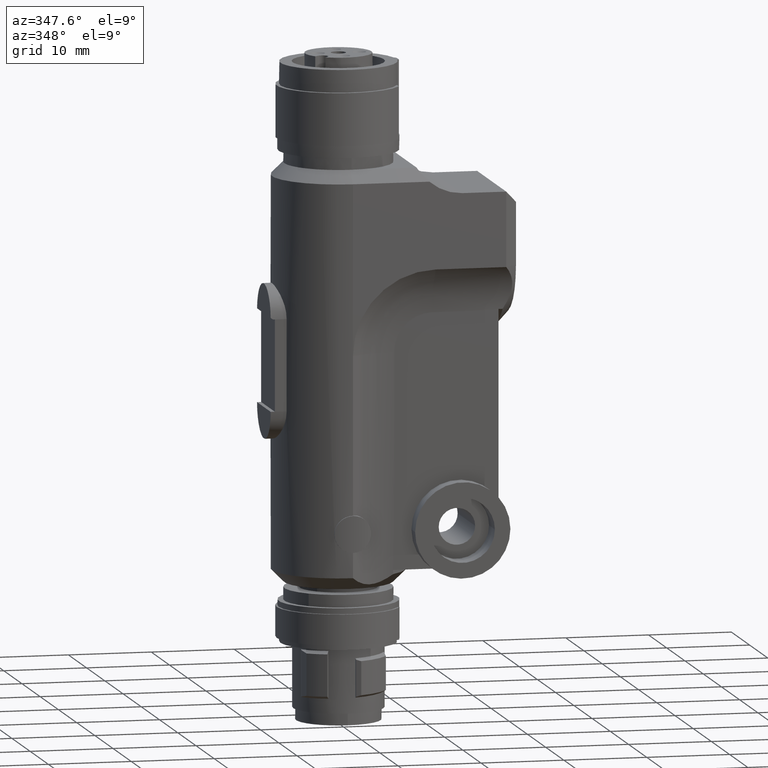
[diagram: clean part render]
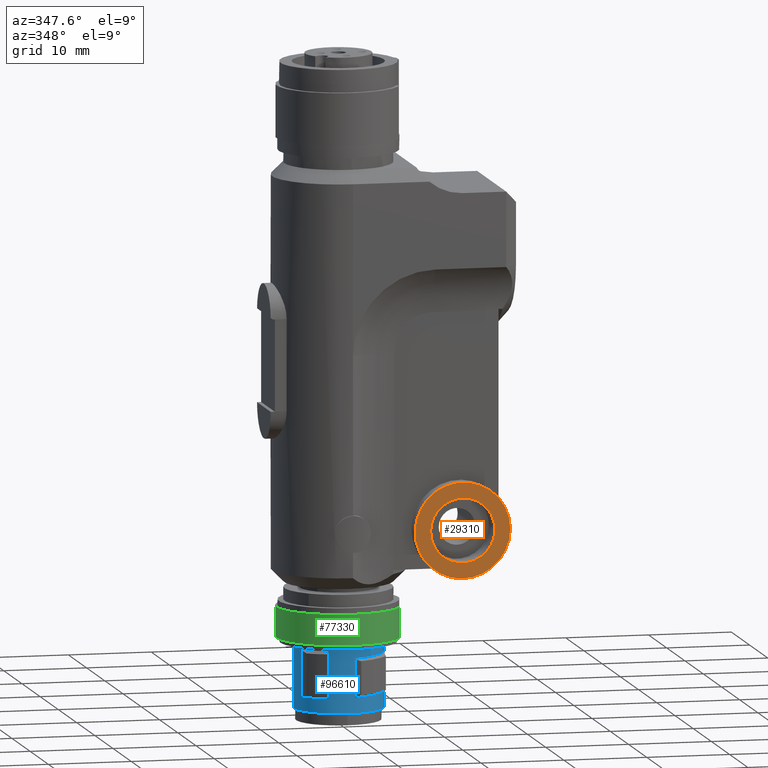
[diagram: same view with three faces highlighted in distinct colors, each labeled with its STEP entity id]
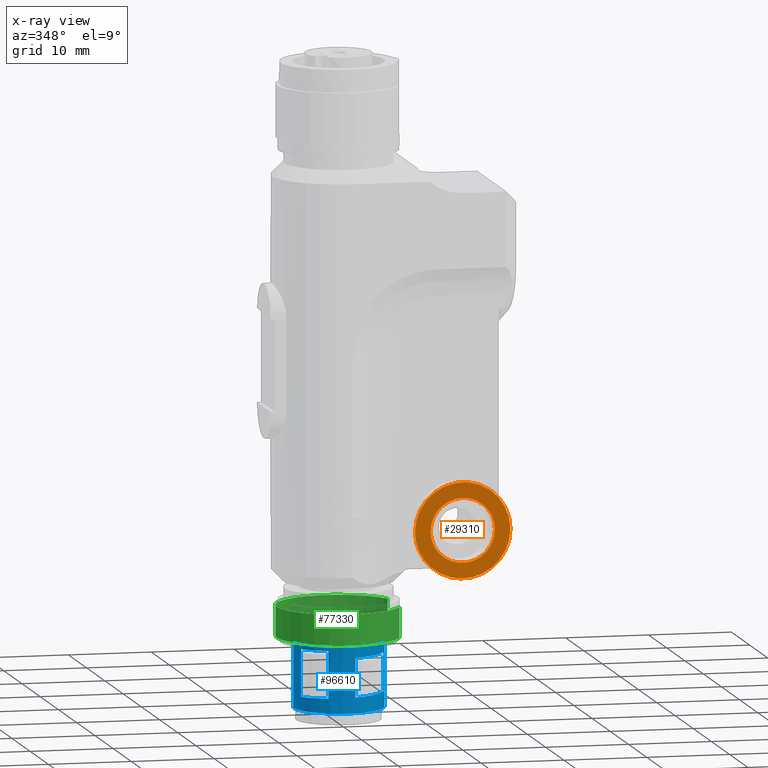
[diagram: x-ray of the same camera — body ghosted, the three highlighted faces saturated]
A machine part, auxiliary view with three faces highlighted in distinct colors.
The next image is the same camera in x-ray (body ghosted, the three faces saturated) — at least one of them is partly hidden behind the body in this view.
Their STEP definitions:

[orange] entity #29310 — the highlighted planar face has unit normal (0, -1, 0).
#10130=CARTESIAN_POINT('',(8.,13.25,6.75000000000001));
#10140=DIRECTION('',(1.,0.,0.));
#10150=DIRECTION('',(0.,1.,0.));
#10160=AXIS2_PLACEMENT_3D('',#10130,#10140,#10150);
#10170=CIRCLE('',#10160,5.75000000000003);
#10180=CARTESIAN_POINT('',(8.,10.5214545305889,1.688622754491));
#10190=VERTEX_POINT('',#10180);
#10200=CARTESIAN_POINT('',(8.,19.,6.75000000000001));
#10210=VERTEX_POINT('',#10200);
#10220=EDGE_CURVE('',#10190,#10210,#10170,.T.);
#10750=CARTESIAN_POINT('',(8.,7.49999999999997,6.75000000000001));
#10760=VERTEX_POINT('',#10750);
#10790=EDGE_CURVE('',#10760,#10190,#10170,.T.);
#29010=CARTESIAN_POINT('',(8.,13.25,11.3125));
#29020=DIRECTION('',(1.,0.,-0.));
#29030=DIRECTION('',(0.,0.,1.));
#29040=AXIS2_PLACEMENT_3D('',#29010,#29020,#29030);
#29050=PLANE('',#29040);
#29060=CARTESIAN_POINT('',(8.,13.25,6.75000000000001));
#29070=DIRECTION('',(1.,0.,0.));
#29080=DIRECTION('',(0.,1.,0.));
#29090=AXIS2_PLACEMENT_3D('',#29060,#29070,#29080);
#29100=CIRCLE('',#29090,3.87499999999999);
#29110=CARTESIAN_POINT('',(8.,13.25,10.625));
#29120=VERTEX_POINT('',#29110);
#29130=CARTESIAN_POINT('',(8.,9.37500000000003,6.75000000000001));
#29140=VERTEX_POINT('',#29130);
#29150=EDGE_CURVE('',#29120,#29140,#29100,.T.);
#29160=ORIENTED_EDGE('',*,*,#29150,.F.);
#29170=CARTESIAN_POINT('',(8.,17.125,6.75000000000001));
#29180=VERTEX_POINT('',#29170);
#29190=EDGE_CURVE('',#29140,#29180,#29100,.T.);
#29200=ORIENTED_EDGE('',*,*,#29190,.F.);
#29210=EDGE_CURVE('',#29180,#29120,#29100,.T.);
#29220=ORIENTED_EDGE('',*,*,#29210,.F.);
#29230=EDGE_LOOP('',(#29220,#29200,#29160));
#29240=FACE_BOUND('',#29230,.T.);
#29250=EDGE_CURVE('',#10210,#10760,#10170,.T.);
#29260=ORIENTED_EDGE('',*,*,#29250,.T.);
#29270=ORIENTED_EDGE('',*,*,#10220,.T.);
#29280=ORIENTED_EDGE('',*,*,#10790,.T.);
#29290=EDGE_LOOP('',(#29280,#29270,#29260));
#29300=FACE_OUTER_BOUND('',#29290,.T.);
#29310=ADVANCED_FACE('',(#29240,#29300),#29050,.T.);

[blue] entity #96610 — the highlighted cylindrical surface (partial cylindrical patch) has radius 5.45 mm, axis along (0, 0, 1).
#41780=CARTESIAN_POINT('',(-1.86872739504906E-12,2.28794760914752E-12,
-7.20000000000022));
#41790=DIRECTION('',(-2.83106871279415E-15,1.12410081243297E-15,1.));
#41800=DIRECTION('',(0.00268545535049847,-0.999996394158279,
1.14491749414469E-15));
#41810=AXIS2_PLACEMENT_3D('',#41780,#41790,#41800);
#41820=CIRCLE('',#41810,5.45);
#41830=CARTESIAN_POINT('',(0.0146357316583562,-5.44998034816034,
-7.20000000000021));
#41840=VERTEX_POINT('',#41830);
#41850=CARTESIAN_POINT('',(-0.0146357316620764,5.44998034816491,
-7.20000000000022));
#41860=VERTEX_POINT('',#41850);
#41870=EDGE_CURVE('',#41840,#41860,#41820,.T.);
#42410=CARTESIAN_POINT('',(-0.0146357316620563,5.4499803481649,
-14.3004962076465));
#42420=DIRECTION('',(-2.83106871279415E-15,1.13103970633688E-15,1.));
#42430=VECTOR('',#42420,1.);
#42440=LINE('',#42410,#42430);
#42450=CARTESIAN_POINT('',(-0.0146357316620542,5.4499803481649,
-15.0500000028831));
#42460=VERTEX_POINT('',#42450);
#42470=EDGE_CURVE('',#42460,#41860,#42440,.T.);
#42500=CARTESIAN_POINT('',(0.0146357316583763,-5.44998034816034,
-14.3004962076465));
#42510=DIRECTION('',(-2.83106871279415E-15,1.13103970633688E-15,1.));
#42520=VECTOR('',#42510,1.);
#42530=LINE('',#42500,#42520);
#42540=CARTESIAN_POINT('',(0.0146357316583785,-5.44998034816034,
-15.0500000028831));
#42550=VERTEX_POINT('',#42540);
#42560=EDGE_CURVE('',#42550,#41840,#42530,.T.);
#42580=CARTESIAN_POINT('',(-1.84741111297626E-12,2.27906582495052E-12,
-15.0500000028831));
#42590=DIRECTION('',(-2.83106871279415E-15,1.12410081243297E-15,1.));
#42600=DIRECTION('',(0.00268545535049847,-0.999996394158279,
1.14491749414469E-15));
#42610=AXIS2_PLACEMENT_3D('',#42580,#42590,#42600);
#42620=CIRCLE('',#42610,5.45);
#44240=CARTESIAN_POINT('',(-1.84030568561866E-12,2.27950991416037E-12,
-14.5004962076465));
#44250=DIRECTION('',(2.72004641033163E-15,-1.22124532708767E-15,-1.));
#44260=DIRECTION('',(-0.709003135160326,0.705205327782504,
-2.77555756156289E-15));
#44270=AXIS2_PLACEMENT_3D('',#44240,#44250,#44260);
#44280=CYLINDRICAL_SURFACE('',#44270,5.45);
#48160=EDGE_CURVE('',#42550,#42460,#42620,.T.);
#58930=CARTESIAN_POINT('',(-0.000227798349044406,-0.00706739753524754,
-10.6224478367985));
#58940=CARTESIAN_POINT('',(-0.706193270419206,-21.9095028888686,
-23.2743919258768));
#58950=CARTESIAN_POINT('',(0.00391218727632037,-0.00720083871835309,
-10.529217029654));
#58960=CARTESIAN_POINT('',(12.1280963770206,-22.323181329025,
-23.1811611187323));
#58970=CARTESIAN_POINT('',(0.00693395635148875,-0.00436778397410764,
-10.465678643943));
#58980=CARTESIAN_POINT('',(21.495824448709,-13.5404829178685,
-23.1176227330225));
#58990=CARTESIAN_POINT('',(0.00706739753459118,-0.000227798348744646,
-10.3724478367985));
#59000=CARTESIAN_POINT('',(21.9095028888697,-0.706193270418671,
-23.0243919258797));
#59010=CARTESIAN_POINT('',(0.00720083871769361,0.00391218727661657,
-10.279217029654));
#59020=CARTESIAN_POINT('',(22.3231813290181,12.1280963770263,
-22.9311611187369));
#59030=CARTESIAN_POINT('',(0.00436778397345705,0.00693395635178762,
-10.215678643943));
#59040=CARTESIAN_POINT('',(13.5404829178659,21.4958244487103,
-22.8676227330272));
#59050=CARTESIAN_POINT('',(0.000227798348085173,0.00706739753489272,
-10.1224478367985));
#59060=CARTESIAN_POINT('',(0.706193270408335,21.9095028888692,
-22.7743919258827));
#59070=CARTESIAN_POINT('',(-0.00391218727727249,0.00720083871799782,
-10.029217029654));
#59080=CARTESIAN_POINT('',(-12.1280963770207,22.3231813290226,
-22.6811611187382));
#59090=CARTESIAN_POINT('',(-0.00693395635244087,0.00436778397375193,
-9.96567864394304));
#59100=CARTESIAN_POINT('',(-21.4958244487026,13.5404829178652,
-22.617622733026));
#59110=CARTESIAN_POINT('',(-0.00706739753554331,0.000227798348389374,
-9.87244783679852));
#59120=CARTESIAN_POINT('',(-21.9095028888606,0.706193270417621,
-22.5243919258798));
#59130=CARTESIAN_POINT('',(-0.00720083871865285,-0.00391218727697273,
-9.77921702965401));
#59140=CARTESIAN_POINT('',(-22.323181329028,-12.128096377029,
-22.4311611187335));
#59150=CARTESIAN_POINT('',(-0.00436778397440918,-0.00693395635214467,
-9.71567864394303));
#59160=CARTESIAN_POINT('',(-13.5404829178597,-21.4958244487149,
-22.3676227330213));
#59170=CARTESIAN_POINT('',(-0.000227798349044406,-0.00706739753524888,
-9.62244783679852));
#59180=CARTESIAN_POINT('',(-0.706193270414595,-21.9095028888696,
-22.2743919258768));
#59190=CARTESIAN_POINT('',(0.00391218727631326,-0.00720083871835264,
-9.52921702965401));
#59200=CARTESIAN_POINT('',(12.1280963770213,-22.323181329022,
-22.1811611187323));
#59210=CARTESIAN_POINT('',(0.00693395635148164,-0.00436778397410764,
-9.46567864394304));
#59220=CARTESIAN_POINT('',(21.4958244487094,-13.5404829178656,
-22.1176227330225));
#59230=CARTESIAN_POINT('',(0.00706739753459118,-0.000227798348745534,
-9.37244783679852));
#59240=CARTESIAN_POINT('',(21.9095028888689,-0.706193270418647,
-22.0243919258797));
#59250=CARTESIAN_POINT('',(0.00720083871769361,0.00391218727661657,
-9.27921702965401));
#59260=CARTESIAN_POINT('',(22.3231813290188,12.1280963770278,
-21.9311611187369));
#59270=CARTESIAN_POINT('',(0.00436778397344995,0.00693395635178762,
-9.21567864394304));
#59280=CARTESIAN_POINT('',(13.540482917857,21.4958244487129,
-21.8676227330272));
#59290=CARTESIAN_POINT('',(0.000227798348085173,0.00706739753489183,
-9.12244783679852));
#59300=CARTESIAN_POINT('',(0.706193270418645,21.9095028888685,
-21.7743919258827));
#59310=CARTESIAN_POINT('',(-0.00391218727727249,0.00720083871799782,
-9.02921702965401));
#59320=CARTESIAN_POINT('',(-12.1280963770256,22.3231813290239,
-21.6811611187382));
#59330=CARTESIAN_POINT('',(-0.00693395635244798,0.00436778397375148,
-8.96567864394304));
#59340=CARTESIAN_POINT('',(-21.4958244487124,13.5404829178649,
-21.617622733026));
#59350=CARTESIAN_POINT('',(-0.00706739753555041,0.000227798348389374,
-8.87244783679852));
#59360=CARTESIAN_POINT('',(-21.909502888875,0.706193270418516,
-21.5243919258798));
#59370=CARTESIAN_POINT('',(-0.00720083871865995,-0.00391218727697362,
-8.779217029654));
#59380=CARTESIAN_POINT('',(-22.3231813290328,-12.1280963770291,
-21.4311611187335));
#59390=CARTESIAN_POINT('',(-0.00436778397440918,-0.00693395635214467,
-8.71567864394303));
#59400=CARTESIAN_POINT('',(-13.5404829178646,-21.495824448715,
-21.3676227330213));
#59410=CARTESIAN_POINT('',(-0.000227798349044406,-0.00706739753524843,
-8.62244783679852));
#59420=CARTESIAN_POINT('',(-0.706193270413628,-21.9095028888665,
-21.2743919258768));
#59430=CARTESIAN_POINT('',(0.00391218727631326,-0.00720083871835397,
-8.52921702965401));
#59440=CARTESIAN_POINT('',(12.1280963770258,-22.3231813290229,
-21.1811611187323));
#59450=CARTESIAN_POINT('',(0.00693395635148164,-0.00436778397410853,
-8.46567864394303));
#59460=CARTESIAN_POINT('',(21.4958244487142,-13.5404829178665,
-21.1176227330225));
#59470=CARTESIAN_POINT('',(0.00706739753459118,-0.000227798348746422,
-8.37244783679852));
#59480=CARTESIAN_POINT('',(21.9095028888734,-0.706193270419481,
-21.0243919258797));
#59490=CARTESIAN_POINT('',(0.00720083871769361,0.00391218727661569,
-8.279217029654));
#59500=CARTESIAN_POINT('',(22.3231813290229,12.1280963770269,
-20.9311611187369));
#59510=CARTESIAN_POINT('',(0.00436778397344995,0.00693395635178673,
-8.21567864394304));
#59520=CARTESIAN_POINT('',(13.5404829178619,21.4958244487132,
-20.8676227330272));
#59530=CARTESIAN_POINT('',(0.000227798348085173,0.0070673975348905,
-8.12244783679852));
#59540=CARTESIAN_POINT('',(0.706193270417522,21.9095028888658,
-20.7743919258827));
#59550=CARTESIAN_POINT('',(-0.00391218727727249,0.00720083871799648,
-8.02921702965401));
#59560=CARTESIAN_POINT('',(-12.1280963770205,22.323181329023,
-20.6811611187382));
#59570=CARTESIAN_POINT('',(-0.00693395635244798,0.00436778397375059,
-7.96567864394304));
#59580=CARTESIAN_POINT('',(-21.4958244487083,13.5404829178639,
-20.617622733026));
#59590=CARTESIAN_POINT('',(-0.00706739753555041,0.000227798348388486,
-7.87244783679852));
#59600=CARTESIAN_POINT('',(-21.9095028888705,0.706193270418802,
-20.5243919258798));
#59610=CARTESIAN_POINT('',(-0.00720083871865285,-0.00391218727697362,
-7.779217029654));
#59620=CARTESIAN_POINT('',(-22.3231813290183,-12.1280963770281,
-20.4311611187335));
#59630=CARTESIAN_POINT('',(-0.00436778397440918,-0.00693395635214467,
-7.71567864394304));
#59640=CARTESIAN_POINT('',(-13.5404829178696,-21.4958244487123,
-20.3676227330213));
#59650=CARTESIAN_POINT('',(-0.000227798349051511,-0.00706739753524976,
-7.62244783679852));
#59660=CARTESIAN_POINT('',(-0.706193270424023,-21.9095028888683,
-20.2743919258768));
#59670=CARTESIAN_POINT('',(0.00391218727632037,-0.00720083871835442,
-7.529217029654));
#59680=CARTESIAN_POINT('',(12.1280963770402,-22.3231813290247,
-20.1811611187322));
#59690=CARTESIAN_POINT('',(0.00693395635148875,-0.00436778397410942,
-7.46567864394303));
#59700=CARTESIAN_POINT('',(21.4958244487286,-13.5404829178683,
-20.1176227330225));
#59710=CARTESIAN_POINT('',(0.00706739753459118,-0.00022779834874731,
-7.37244783679852));
#59720=CARTESIAN_POINT('',(21.9095028888881,-0.706193270421335,
-20.0243919258797));
#59730=CARTESIAN_POINT('',(0.00720083871769361,0.00391218727661569,
-7.27921702965401));
#59740=CARTESIAN_POINT('',(22.323181329034,12.1280963770289,
-19.9311611187369));
#59750=CARTESIAN_POINT('',(0.00436778397345705,0.00693395635178629,
-7.21567864394303));
#59760=CARTESIAN_POINT('',(13.5404829178819,21.4958244487145,
-19.8676227330272));
#59770=CARTESIAN_POINT('',(0.000227798348085173,0.00706739753489138,
-7.12244783679852));
#59780=CARTESIAN_POINT('',(0.706193270418304,21.9095028888689,
-19.7743919258827));
#59790=CARTESIAN_POINT('',(-0.00391218727727249,0.00720083871799515,
-7.029217029654));
#59800=CARTESIAN_POINT('',(-12.1280963770061,22.3231813290208,
-19.6811611187382));
#59810=CARTESIAN_POINT('',(-0.00693395635244087,0.00436778397375015,
-6.96567864394304));
#59820=CARTESIAN_POINT('',(-21.4958244486979,13.5404829178645,
-19.617622733026));
#59830=CARTESIAN_POINT('',(-0.00706739753555041,0.000227798348387154,
-6.87244783679852));
#59840=CARTESIAN_POINT('',(-21.9095028888561,0.70619327041696,
-19.5243919258798));
#59850=CARTESIAN_POINT('',(-0.00720083871866706,-0.00391218727697362,
-6.77921702965401));
#59860=CARTESIAN_POINT('',(-22.323181329052,-12.1280963770255,
-19.4311611187335));
#59870=CARTESIAN_POINT('',(-0.00436778397442339,-0.00693395635214555,
-6.71567864394303));
#59880=CARTESIAN_POINT('',(-13.540482917889,-21.4958244487144,
-19.3676227330213));
#59890=CARTESIAN_POINT('',(-0.000227798349044406,-0.00706739753524932,
-6.62244783679852));
#59900=CARTESIAN_POINT('',(-0.706193270413635,-21.9095028888664,
-19.2743919258768));
#59910=CARTESIAN_POINT('',(0.00391218727630616,-0.00720083871835575,
-6.52921702965401));
#59920=CARTESIAN_POINT('',(12.1280963770016,-22.3231813290252,
-19.1811611187322));
#59930=CARTESIAN_POINT('',(0.00693395635148164,-0.00436778397411031,
-6.46567864394303));
#59940=CARTESIAN_POINT('',(21.4958244487093,-13.5404829178691,
-19.1176227330225));
#59950=CARTESIAN_POINT('',(0.00706739753457697,-0.00022779834874731,
-6.37244783679852));
#59960=CARTESIAN_POINT('',(21.9095028888551,-0.70619327041855,
-19.0243919258797));
#59970=CARTESIAN_POINT('',(0.00720083871768651,0.0039121872766148,
-6.27921702965401));
#59980=CARTESIAN_POINT('',(22.3231813290188,12.1280963770295,
-18.9311611187369));
#59990=CARTESIAN_POINT('',(0.00436778397344284,0.00693395635178629,
-6.21567864394304));
#60000=CARTESIAN_POINT('',(13.5404829178667,21.4958244487139,
-18.8676227330272));
#60010=CARTESIAN_POINT('',(0.000227798348085173,0.00706739753489094,
-6.12244783679853));
#60020=CARTESIAN_POINT('',(0.706193270422403,21.909502888868,
-18.7743919258827));
#60030=CARTESIAN_POINT('',(-0.00391218727727249,0.00720083871799515,
-6.02921702965401));
#60040=CARTESIAN_POINT('',(-12.1280963770205,22.3231813290217,
-18.6811611187382));
#60050=CARTESIAN_POINT('',(-0.00693395635245508,0.00436778397374971,
-5.96567864394304));
#60060=CARTESIAN_POINT('',(-21.4958244487124,13.5404829178655,
-18.617622733026));
#60070=CARTESIAN_POINT('',(-0.00706739753555752,0.000227798348387154,
-5.87244783679852));
#60080=CARTESIAN_POINT('',(-21.9095028888698,0.706193270419208,
-18.5243919258798));
#60090=CARTESIAN_POINT('',(-0.00720083871866706,-0.00391218727697362,
-5.77921702965401));
#60100=CARTESIAN_POINT('',(-22.3231813290423,-12.1280963770249,
-18.4311611187335));
#60110=CARTESIAN_POINT('',(-0.00436778397441628,-0.006933956352146,
-5.71567864394303));
#60120=CARTESIAN_POINT('',(-13.5404829178793,-21.4958244487138,
-18.3676227330213));
#60130=CARTESIAN_POINT('',(-0.000227798349051511,-0.00706739753525198,
-5.62244783679852));
#60140=CARTESIAN_POINT('',(-0.706193270415142,-21.9095028888705,
-18.2743919258768));
#60150=CARTESIAN_POINT('',(0.00391218727630616,-0.00720083871835575,
-5.52921702965401));
#60160=CARTESIAN_POINT('',(12.128096377012,-22.3231813290232,
-18.1811611187323));
#60170=CARTESIAN_POINT('',(0.00693395635148164,-0.00436778397411119,
-5.46567864394303));
#60180=CARTESIAN_POINT('',(21.4958244487182,-13.5404829178684,
-18.1176227330225));
#60190=CARTESIAN_POINT('',(0.00706739753458407,-0.000227798348747754,
-5.37244783679853));
#60200=CARTESIAN_POINT('',(21.9095028888662,-0.706193270416886,
-18.0243919258797));
#60210=CARTESIAN_POINT('',(0.00720083871768651,0.0039121872766148,
-5.27921702965401));
#60220=CARTESIAN_POINT('',(22.3231813290195,12.1280963770287,
-17.9311611187369));
#60230=CARTESIAN_POINT('',(0.00436778397344284,0.0069339563517854,
-5.21567864394304));
#60240=CARTESIAN_POINT('',(13.540482917866,21.4958244487124,
-17.8676227330272));
#60250=CARTESIAN_POINT('',(0.000227798348085173,0.00706739753489005,
-5.12244783679853));
#60260=CARTESIAN_POINT('',(0.706193270427917,21.9095028888681,
-17.7743919258827));
#60270=CARTESIAN_POINT('',(-0.0039121872772796,0.00720083871799426,
-5.029217029654));
#60280=CARTESIAN_POINT('',(-12.1280963770157,22.3231813290223,
-17.6811611187382));
#60290=CARTESIAN_POINT('',(-0.00693395635244798,0.00436778397374882,
-4.96567864394304));
#60300=CARTESIAN_POINT('',(-21.4958244487069,13.5404829178655,
-17.617622733026));
#60310=CARTESIAN_POINT('',(-0.00706739753555752,0.000227798348385821,
-4.87244783679852));
#60320=CARTESIAN_POINT('',(-21.9095028888658,0.706193270416667,
-17.5243919258798));
#60330=CARTESIAN_POINT('',(-0.00720083871866706,-0.00391218727697629,
-4.779217029654));
#60340=CARTESIAN_POINT('',(-22.3231813290425,-12.1280963770288,
-17.4311611187335));
#60350=CARTESIAN_POINT('',(-0.00436778397441628,-0.00693395635214689,
-4.71567864394303));
#60360=CARTESIAN_POINT('',(-13.5404829178738,-21.4958244487148,
-17.3676227330213));
#60370=CARTESIAN_POINT('',(-0.000227798349051511,-0.00706739753525154,
-4.62244783679852));
#60380=CARTESIAN_POINT('',(-0.706193270405443,-21.9095028888685,
-17.2743919258768));
#60390=CARTESIAN_POINT('',(0.00391218727630616,-0.0072008387183562,
-4.52921702965401));
#60400=CARTESIAN_POINT('',(12.1280963770161,-22.3231813290224,
-17.1811611187323));
#60410=CARTESIAN_POINT('',(0.00693395635148164,-0.00436778397411075,
-4.46567864394303));
#60420=CARTESIAN_POINT('',(21.4958244487045,-13.5404829178662,
-17.1176227330225));
#60430=CARTESIAN_POINT('',(0.00706739753458407,-0.000227798348749086,
-4.37244783679852));
#60440=CARTESIAN_POINT('',(21.9095028888634,-0.706193270418948,
-17.0243919258797));
#60450=CARTESIAN_POINT('',(0.00720083871768651,0.00391218727661302,
-4.279217029654));
#60460=CARTESIAN_POINT('',(22.3231813290222,12.1280963770272,
-16.9311611187369));
#60470=CARTESIAN_POINT('',(0.00436778397344284,0.00693395635178451,
-4.21567864394303));
#60480=CARTESIAN_POINT('',(13.5404829178701,21.4958244487119,
-16.8676227330272));
#60490=CARTESIAN_POINT('',(0.000227798348078068,0.00706739753489005,
-4.12244783679853));
#60500=CARTESIAN_POINT('',(0.706193270412811,21.9095028888695,
-16.7743919258827));
#60510=CARTESIAN_POINT('',(-0.00391218727727249,0.00720083871799382,
-4.029217029654));
#60520=CARTESIAN_POINT('',(-12.128096377013,22.3231813290214,
-16.6811611187382));
#60530=CARTESIAN_POINT('',(-0.00693395635244798,0.00436778397374793,
-3.96567864394303));
#60540=CARTESIAN_POINT('',(-21.4958244487083,13.5404829178634,
-16.617622733026));
#60550=CARTESIAN_POINT('',(-0.00706739753555041,0.000227798348385821,
-3.87244783679852));
#60560=CARTESIAN_POINT('',(-21.9095028888616,0.706193270417135,
-16.5243919258798));
#60570=CARTESIAN_POINT('',(-0.00720083871865995,-0.00391218727697673,
-3.779217029654));
#60580=CARTESIAN_POINT('',(-22.3231813290191,-12.1280963770301,
-16.4311611187335));
#60590=CARTESIAN_POINT('',(-0.00436778397441628,-0.00693395635214822,
-3.71567864394303));
#60600=CARTESIAN_POINT('',(-13.5404829178697,-21.4958244487143,
-16.3676227330213));
#60610=CARTESIAN_POINT('',(-0.000227798349051511,-0.00706739753525332,
-3.62244783679852));
#60620=CARTESIAN_POINT('',(-0.706193270404135,-21.9095028888707,
-16.2743919258768));
#60630=(BOUNDED_SURFACE() B_SPLINE_SURFACE(1,3,((#58930,#58950,#58970,
#58990,#59010,#59030,#59050,#59070,#59090,#59110,#59130,#59150,#59170,
#59190,#59210,#59230,#59250,#59270,#59290,#59310,#59330,#59350,#59370,
#59390,#59410,#59430,#59450,#59470,#59490,#59510,#59530,#59550,#59570,
#59590,#59610,#59630,#59650,#59670,#59690,#59710,#59730,#59750,#59770,
#59790,#59810,#59830,#59850,#59870,#59890,#59910,#59930,#59950,#59970,
#59990,#60010,#60030,#60050,#60070,#60090,#60110,#60130,#60150,#60170,
#60190,#60210,#60230,#60250,#60270,#60290,#60310,#60330,#60350,#60370,
#60390,#60410,#60430,#60450,#60470,#60490,#60510,#60530,#60550,#60570,
#60590,#60610),(#58940,#58960,#58980,#59000,#59020,#59040,#59060,#59080,
#59100,#59120,#59140,#59160,#59180,#59200,#59220,#59240,#59260,#59280,
#59300,#59320,#59340,#59360,#59380,#59400,#59420,#59440,#59460,#59480,
#59500,#59520,#59540,#59560,#59580,#59600,#59620,#59640,#59660,#59680,
#59700,#59720,#59740,#59760,#59780,#59800,#59820,#59840,#59860,#59880,
#59900,#59920,#59940,#59960,#59980,#60000,#60020,#60040,#60060,#60080,
#60100,#60120,#60140,#60160,#60180,#60200,#60220,#60240,#60260,#60280,
#60300,#60320,#60340,#60360,#60380,#60400,#60420,#60440,#60460,#60480,
#60500,#60520,#60540,#60560,#60580,#60600,#60620)),.UNSPECIFIED.,.F.,.F.
,.F.) B_SPLINE_SURFACE_WITH_KNOTS((2,2),(4,3,3,3,3,3,3,3,3,3,3,3,3,3,3,3
,3,3,3,3,3,3,3,3,3,3,3,3,4),(-6.32140109085111,18.9824870873053),(
-2.48528137423887,-1.65685424949268,-0.828427124746488,
-2.97983859809392E-13,0.828427124745892,1.65685424949208,
2.48528137423827,3.31370849898446,4.14213562373065,4.97056274847684,
5.79898987322303,6.62741699796922,7.45584412271541,8.2842712474616,
9.11269837220779,9.94112549695398,10.7695526217002,11.5979797464464,
12.4264068711926,13.2548339959387,14.0832611206849,14.9116882454311,
15.7401153701773,16.5685424949235,17.3969696196697,18.2253967444159,
19.0538238691621,19.8822509939083,20.7106781186545),.UNSPECIFIED.) 
GEOMETRIC_REPRESENTATION_ITEM() RATIONAL_B_SPLINE_SURFACE(((
1.17157287525381,0.942809041582063,0.942809041582063,1.17157287525381,
0.942809041582063,0.942809041582063,1.17157287525381,0.942809041582063,
0.942809041582063,1.17157287525381,0.942809041582063,0.942809041582063,
1.17157287525381,0.942809041582063,0.942809041582063,1.17157287525381,
0.942809041582063,0.942809041582063,1.17157287525381,0.942809041582063,
0.942809041582063,1.17157287525381,0.942809041582063,0.942809041582063,
1.17157287525381,0.942809041582063,0.942809041582063,1.17157287525381,
0.942809041582063,0.942809041582063,1.17157287525381,0.942809041582063,
0.942809041582063,1.17157287525381,0.942809041582063,0.942809041582063,
1.17157287525381,0.942809041582063,0.942809041582063,1.17157287525381,
0.942809041582063,0.942809041582063,1.17157287525381,0.942809041582063,
0.942809041582063,1.17157287525381,0.942809041582063,0.942809041582063,
1.17157287525381,0.942809041582063,0.942809041582063,1.17157287525381,
0.942809041582063,0.942809041582063,1.17157287525381,0.942809041582063,
0.942809041582063,1.17157287525381,0.942809041582063,0.942809041582063,
1.17157287525381,0.942809041582063,0.942809041582063,1.17157287525381,
0.942809041582063,0.942809041582063,1.17157287525381,0.942809041582063,
0.942809041582063,1.17157287525381,0.942809041582063,0.942809041582063,
1.17157287525381,0.942809041582063,0.942809041582063,1.17157287525381,
0.942809041582063,0.942809041582063,1.17157287525381,0.942809041582063,
0.942809041582063,1.17157287525381,0.942809041582063,0.942809041582063,
1.17157287525381),(1.17157287525381,0.942809041582063,0.942809041582063,
1.17157287525381,0.942809041582063,0.942809041582063,1.17157287525381,
0.942809041582063,0.942809041582063,1.17157287525381,0.942809041582063,
0.942809041582063,1.17157287525381,0.942809041582063,0.942809041582063,
1.17157287525381,0.942809041582063,0.942809041582063,1.17157287525381,
0.942809041582063,0.942809041582063,1.17157287525381,0.942809041582063,
0.942809041582063,1.17157287525381,0.942809041582063,0.942809041582063,
1.17157287525381,0.942809041582063,0.942809041582063,1.17157287525381,
0.942809041582063,0.942809041582063,1.17157287525381,0.942809041582063,
0.942809041582063,1.17157287525381,0.942809041582063,0.942809041582063,
1.17157287525381,0.942809041582063,0.942809041582063,1.17157287525381,
0.942809041582063,0.942809041582063,1.17157287525381,0.942809041582063,
0.942809041582063,1.17157287525381,0.942809041582063,0.942809041582063,
1.17157287525381,0.942809041582063,0.942809041582063,1.17157287525381,
0.942809041582063,0.942809041582063,1.17157287525381,0.942809041582063,
0.942809041582063,1.17157287525381,0.942809041582063,0.942809041582063,
1.17157287525381,0.942809041582063,0.942809041582063,1.17157287525381,
0.942809041582063,0.942809041582063,1.17157287525381,0.942809041582063,
0.942809041582063,1.17157287525381,0.942809041582063,0.942809041582063,
1.17157287525381,0.942809041582063,0.942809041582063,1.17157287525381,
0.942809041582063,0.942809041582063,1.17157287525381,0.942809041582063,
0.942809041582063,1.17157287525381))) REPRESENTATION_ITEM('') SURFACE())
;
#60810=CARTESIAN_POINT('',(2.15508974811585,5.00580544743609,
-8.3243791222816));
#60820=VERTEX_POINT('',#60810);
#60850=CARTESIAN_POINT('',(2.15508974811588,5.00580544743608,
-14.5004962076465));
#60860=DIRECTION('',(2.72004641033163E-15,-1.22124532708767E-15,-1.));
#60870=VECTOR('',#60860,1.);
#60880=LINE('',#60850,#60870);
#60890=CARTESIAN_POINT('',(2.15508974811586,5.00580544743608,
-13.0219647500872));
#60900=VERTEX_POINT('',#60890);
#60910=EDGE_CURVE('',#60820,#60900,#60880,.T.);
#60930=CARTESIAN_POINT('',(-0.000227798349023089,-0.00706739753540653,
-17.6049864329675));
#60940=CARTESIAN_POINT('',(-0.724296628409711,-22.4711558972034,
-4.62860342649349));
#60950=CARTESIAN_POINT('',(0.00391218727643405,-0.00720083871850496,
-17.511755625823));
#60960=CARTESIAN_POINT('',(12.4390017339642,-22.8954390389451,
-4.53537261934896));
#60970=CARTESIAN_POINT('',(0.00693395635166638,-0.00436778397418891,
-17.448217240112));
#60980=CARTESIAN_POINT('',(22.0468727554581,-13.8875949907945,
-4.47183423363711));
#60990=CARTESIAN_POINT('',(0.00706739753476882,-0.000227798348729102,
-17.3549864329675));
#61000=CARTESIAN_POINT('',(22.4711558972059,-0.724296628407263,
-4.37860342649137));
#61010=CARTESIAN_POINT('',(0.00720083871787125,0.00391218727672538,
-17.261755625823));
#61020=CARTESIAN_POINT('',(22.8954390389481,12.4390017339671,
-4.28537261934564));
#61030=CARTESIAN_POINT('',(0.00436778397354942,0.00693395635196037,
-17.198217240112));
#61040=CARTESIAN_POINT('',(13.8875949908003,22.0468727554601,
-4.22183423363381));
#61050=CARTESIAN_POINT('',(0.000227798348085173,0.00706739753506058,
-17.1049864329675));
#61060=CARTESIAN_POINT('',(0.724296628398356,22.4711558972039,
-4.12860342648932));
#61070=CARTESIAN_POINT('',(-0.00391218727736486,0.00720083871815858,
-17.011755625823));
#61080=CARTESIAN_POINT('',(-12.439001733963,22.8954390389483,
-4.03537261934482));
#61090=CARTESIAN_POINT('',(-0.00693395635259719,0.00436778397384252,
-16.948217240112));
#61100=CARTESIAN_POINT('',(-22.046872755456,13.8875949907937,
-3.97183423363474));
#61110=CARTESIAN_POINT('',(-0.00706739753568542,0.000227798348383601,
-16.8549864329675));
#61120=CARTESIAN_POINT('',(-22.4711558971772,0.724296628408333,
-3.87860342649144));
#61130=CARTESIAN_POINT('',(-0.00720083871879496,-0.00391218727707443,
-16.761755625823));
#61140=CARTESIAN_POINT('',(-22.8954390389432,-12.4390017339749,
-3.78537261934814));
#61150=CARTESIAN_POINT('',(-0.00436778397448023,-0.00693395635230942,
-16.698217240112));
#61160=CARTESIAN_POINT('',(-13.8875949907944,-22.0468727554665,
-3.72183423363802));
#61170=CARTESIAN_POINT('',(-0.000227798349015984,-0.00706739753540742,
-16.6049864329675));
#61180=CARTESIAN_POINT('',(-0.724296628395479,-22.4711558972055,
-3.62860342649349));
#61190=CARTESIAN_POINT('',(0.00391218727642695,-0.00720083871850541,
-16.511755625823));
#61200=CARTESIAN_POINT('',(12.4390017339591,-22.8954390389453,
-3.53537261934896));
#61210=CARTESIAN_POINT('',(0.00693395635166638,-0.00436778397418891,
-16.448217240112));
#61220=CARTESIAN_POINT('',(22.0468727554529,-13.8875949907946,
-3.4718342336371));
#61230=CARTESIAN_POINT('',(0.00706739753476882,-0.000227798348730879,
-16.3549864329675));
#61240=CARTESIAN_POINT('',(22.4711558972005,-0.724296628410198,
-3.37860342649137));
#61250=CARTESIAN_POINT('',(0.00720083871787125,0.00391218727672582,
-16.261755625823));
#61260=CARTESIAN_POINT('',(22.8954390389426,12.4390017339697,
-3.28537261934563));
#61270=CARTESIAN_POINT('',(0.00436778397354942,0.00693395635195992,
-16.198217240112));
#61280=CARTESIAN_POINT('',(13.8875949907951,22.0468727554627,
-3.22183423363381));
#61290=CARTESIAN_POINT('',(0.000227798348092279,0.00706739753506103,
-16.1049864329675));
#61300=CARTESIAN_POINT('',(0.724296628402819,22.4711558972056,
-3.12860342648931));
#61310=CARTESIAN_POINT('',(-0.00391218727736486,0.00720083871815769,
-16.011755625823));
#61320=CARTESIAN_POINT('',(-12.439001733968,22.8954390389453,
-3.03537261934483));
#61330=CARTESIAN_POINT('',(-0.0069339563526043,0.00436778397384074,
-15.948217240112));
#61340=CARTESIAN_POINT('',(-22.0468727554612,13.8875949907908,
-2.97183423363473));
#61350=CARTESIAN_POINT('',(-0.00706739753569963,0.000227798348381825,
-15.8549864329675));
#61360=CARTESIAN_POINT('',(-22.4711558971977,0.724296628407372,
-2.87860342649144));
#61370=CARTESIAN_POINT('',(-0.00720083871879496,-0.00391218727707532,
-15.761755625823));
#61380=CARTESIAN_POINT('',(-22.8954390389429,-12.4390017339735,
-2.78537261934814));
#61390=CARTESIAN_POINT('',(-0.00436778397448023,-0.00693395635230987,
-15.698217240112));
#61400=CARTESIAN_POINT('',(-13.8875949907944,-22.046872755465,
-2.72183423363802));
#61410=CARTESIAN_POINT('',(-0.000227798349023089,-0.00706739753540697,
-15.6049864329675));
#61420=CARTESIAN_POINT('',(-0.724296628410364,-22.471155897202,
-2.62860342649349));
#61430=CARTESIAN_POINT('',(0.00391218727642695,-0.00720083871850585,
-15.511755625823));
#61440=CARTESIAN_POINT('',(12.4390017339632,-22.8954390389464,
-2.53537261934896));
#61450=CARTESIAN_POINT('',(0.00693395635166638,-0.00436778397419113,
-15.448217240112));
#61460=CARTESIAN_POINT('',(22.0468727554516,-13.8875949907975,
-2.4718342336371));
#61470=CARTESIAN_POINT('',(0.00706739753476171,-0.000227798348730435,
-15.3549864329675));
#61480=CARTESIAN_POINT('',(22.4711558972105,-0.724296628406967,
-2.37860342649138));
#61490=CARTESIAN_POINT('',(0.00720083871786414,0.00391218727672538,
-15.261755625823));
#61500=CARTESIAN_POINT('',(22.8954390389533,12.4390017339729,
-2.28537261934563));
#61510=CARTESIAN_POINT('',(0.00436778397354942,0.00693395635195948,
-15.198217240112));
#61520=CARTESIAN_POINT('',(13.8875949907993,22.0468727554616,
-2.22183423363381));
#61530=CARTESIAN_POINT('',(0.000227798348099384,0.00706739753505792,
-15.1049864329675));
#61540=CARTESIAN_POINT('',(0.72429662841369,22.4711558972032,
-2.12860342648932));
#61550=CARTESIAN_POINT('',(-0.00391218727736486,0.00720083871815724,
-15.011755625823));
#61560=CARTESIAN_POINT('',(-12.4390017339635,22.8954390389442,
-2.03537261934483));
#61570=CARTESIAN_POINT('',(-0.0069339563526043,0.00436778397383941,
-14.948217240112));
#61580=CARTESIAN_POINT('',(-22.0468727554624,13.887594990788,
-1.97183423363473));
#61590=CARTESIAN_POINT('',(-0.00706739753569963,0.000227798348381381,
-14.8549864329675));
#61600=CARTESIAN_POINT('',(-22.4711558971935,0.72429662840611,
-1.87860342649143));
#61610=CARTESIAN_POINT('',(-0.00720083871879496,-0.00391218727707621,
-14.761755625823));
#61620=CARTESIAN_POINT('',(-22.8954390389387,-12.4390017339746,
-1.78537261934815));
#61630=CARTESIAN_POINT('',(-0.00436778397448023,-0.00693395635231031,
-14.698217240112));
#61640=CARTESIAN_POINT('',(-13.8875949907898,-22.046872755466,
-1.72183423363802));
#61650=CARTESIAN_POINT('',(-0.000227798349023089,-0.00706739753540742,
-14.6049864329675));
#61660=CARTESIAN_POINT('',(-0.72429662840046,-22.4711558972014,
-1.62860342649349));
#61670=CARTESIAN_POINT('',(0.00391218727642695,-0.00720083871850585,
-14.511755625823));
#61680=CARTESIAN_POINT('',(12.4390017339576,-22.8954390389439,
-1.53537261934896));
#61690=CARTESIAN_POINT('',(0.00693395635166638,-0.00436778397419024,
-14.448217240112));
#61700=CARTESIAN_POINT('',(22.0468727554521,-13.8875949907932,
-1.47183423363711));
#61710=CARTESIAN_POINT('',(0.00706739753476882,-0.000227798348729991,
-14.3549864329675));
#61720=CARTESIAN_POINT('',(22.4711558972152,-0.724296628405262,
-1.37860342649137));
#61730=CARTESIAN_POINT('',(0.00720083871785704,0.00391218727672493,
-14.261755625823));
#61740=CARTESIAN_POINT('',(22.8954390389378,12.4390017339739,
-1.28537261934564));
#61750=CARTESIAN_POINT('',(0.00436778397354232,0.00693395635195859,
-14.198217240112));
#61760=CARTESIAN_POINT('',(13.8875949907944,22.0468727554613,
-1.22183423363381));
#61770=CARTESIAN_POINT('',(0.000227798348085173,0.00706739753505792,
-14.1049864329675));
#61780=CARTESIAN_POINT('',(0.724296628398179,22.4711558972042,
-1.12860342648932));
#61790=CARTESIAN_POINT('',(-0.00391218727737197,0.00720083871815502,
-14.011755625823));
#61800=CARTESIAN_POINT('',(-12.4390017339748,22.8954390389422,
-1.03537261934482));
#61810=CARTESIAN_POINT('',(-0.0069339563526043,0.00436778397383897,
-13.948217240112));
#61820=CARTESIAN_POINT('',(-22.0468727554679,13.8875949907907,
-0.971834233634729));
#61830=CARTESIAN_POINT('',(-0.00706739753569963,0.000227798348381381,
-13.8549864329675));
#61840=CARTESIAN_POINT('',(-22.4711558972026,0.724296628408654,
-0.878603426491442));
#61850=CARTESIAN_POINT('',(-0.00720083871879496,-0.00391218727707709,
-13.761755625823));
#61860=CARTESIAN_POINT('',(-22.895439038943,-12.4390017339746,
-0.785372619348144));
#61870=CARTESIAN_POINT('',(-0.00436778397448023,-0.00693395635230942,
-13.698217240112));
#61880=CARTESIAN_POINT('',(-13.8875949907947,-22.0468727554636,
-0.721834233638023));
#61890=CARTESIAN_POINT('',(-0.000227798349023089,-0.00706739753540964,
-13.6049864329675));
#61900=CARTESIAN_POINT('',(-0.724296628401355,-22.4711558972071,
-0.62860342649349));
#61910=CARTESIAN_POINT('',(0.00391218727642695,-0.00720083871850763,
-13.511755625823));
#61920=CARTESIAN_POINT('',(12.4390017339724,-22.8954390389458,
-0.535372619348954));
#61930=CARTESIAN_POINT('',(0.00693395635166638,-0.00436778397419024,
-13.448217240112));
#61940=CARTESIAN_POINT('',(22.0468727554669,-13.8875949907925,
-0.47183423363711));
#61950=CARTESIAN_POINT('',(0.00706739753476171,-0.000227798348732211,
-13.3549864329675));
#61960=CARTESIAN_POINT('',(22.4711558972087,-0.724296628410086,
-0.378603426491369));
#61970=CARTESIAN_POINT('',(0.00720083871785704,0.00391218727672582,
-13.261755625823));
#61980=CARTESIAN_POINT('',(22.8954390389484,12.4390017339744,
-0.285372619345632));
#61990=CARTESIAN_POINT('',(0.00436778397354232,0.00693395635195815,
-13.198217240112));
#62000=CARTESIAN_POINT('',(13.887594990805,22.0468727554619,
-0.221834233633816));
#62010=CARTESIAN_POINT('',(0.000227798348085173,0.00706739753505836,
-13.1049864329675));
#62020=CARTESIAN_POINT('',(0.724296628402463,22.4711558972056,
-0.128603426489321));
#62030=CARTESIAN_POINT('',(-0.00391218727737197,0.00720083871815458,
-13.011755625823));
#62040=CARTESIAN_POINT('',(-12.4390017339699,22.8954390389414,
-0.0353726193448201));
#62050=CARTESIAN_POINT('',(-0.0069339563526043,0.00436778397383808,
-12.948217240112));
#62060=CARTESIAN_POINT('',(-22.0468727554631,13.8875949907878,
0.0281657663652704));
#62070=CARTESIAN_POINT('',(-0.00706739753570673,0.000227798348379604,
-12.8549864329675));
#62080=CARTESIAN_POINT('',(-22.471155897197,0.724296628408913,
0.12139657350856));
#62090=CARTESIAN_POINT('',(-0.00720083871880917,-0.00391218727707576,
-12.761755625823));
#62100=CARTESIAN_POINT('',(-22.8954390389549,-12.4390017339724,
0.214627380651857));
#62110=CARTESIAN_POINT('',(-0.00436778397448734,-0.0069339563523112,
-12.698217240112));
#62120=CARTESIAN_POINT('',(-13.887594990806,-22.0468727554642,
0.278165766361981));
#62130=CARTESIAN_POINT('',(-0.000227798349030195,-0.00706739753541052,
-12.6049864329675));
#62140=CARTESIAN_POINT('',(-0.724296628406925,-22.4711558972044,
0.371396573506514));
#62150=CARTESIAN_POINT('',(0.00391218727642695,-0.00720083871850807,
-12.511755625823));
#62160=CARTESIAN_POINT('',(12.4390017339667,-22.8954390389446,
0.464627380651046));
#62170=CARTESIAN_POINT('',(0.00693395635166638,-0.00436778397419157,
-12.448217240112));
#62180=CARTESIAN_POINT('',(22.046872755462,-13.8875949907927,
0.528165766362901));
#62190=CARTESIAN_POINT('',(0.00706739753476171,-0.000227798348734876,
-12.3549864329675));
#62200=CARTESIAN_POINT('',(22.471155897193,-0.72429662841316,
0.621396573508642));
#62210=CARTESIAN_POINT('',(0.00720083871785704,0.00391218727672404,
-12.261755625823));
#62220=CARTESIAN_POINT('',(22.8954390389384,12.4390017339726,
0.714627380654365));
#62230=CARTESIAN_POINT('',(0.00436778397354232,0.0069339563519577,
-12.198217240112));
#62240=CARTESIAN_POINT('',(13.8875949907979,22.0468727554618,
0.778165766366191));
#62250=CARTESIAN_POINT('',(0.000227798348085173,0.00706739753505614,
-12.1049864329675));
#62260=CARTESIAN_POINT('',(0.724296628397418,22.4711558972026,
0.871396573510683));
#62270=CARTESIAN_POINT('',(-0.00391218727737197,0.00720083871815413,
-12.011755625823));
#62280=CARTESIAN_POINT('',(-12.4390017339593,22.8954390389433,
0.964627380655177));
#62290=CARTESIAN_POINT('',(-0.0069339563526043,0.00436778397383719,
-11.948217240112));
#62300=CARTESIAN_POINT('',(-22.0468727554531,13.88759499079,
1.02816576636527));
#62310=CARTESIAN_POINT('',(-0.00706739753570673,0.000227798348379604,
-11.8549864329675));
#62320=CARTESIAN_POINT('',(-22.4711558971928,0.724296628407453,
1.12139657350857));
#62330=CARTESIAN_POINT('',(-0.00720083871880206,-0.00391218727707709,
-11.761755625823));
#62340=CARTESIAN_POINT('',(-22.8954390389493,-12.4390017339735,
1.21462738065186));
#62350=CARTESIAN_POINT('',(-0.00436778397448734,-0.00693395635231164,
-11.698217240112));
#62360=CARTESIAN_POINT('',(-13.8875949908018,-22.0468727554639,
1.27816576636198));
#62370=CARTESIAN_POINT('',(-0.000227798349023089,-0.00706739753540875,
-11.6049864329675));
#62380=CARTESIAN_POINT('',(-0.724296628396971,-22.4711558972024,
1.37139657350651));
#62390=CARTESIAN_POINT('',(0.00391218727642695,-0.00720083871850807,
-11.511755625823));
#62400=CARTESIAN_POINT('',(12.4390017339766,-22.8954390389441,
1.46462738065104));
#62410=CARTESIAN_POINT('',(0.00693395635166638,-0.00436778397419202,
-11.448217240112));
#62420=CARTESIAN_POINT('',(22.0468727554719,-13.8875949907922,
1.52816576636289));
#62430=CARTESIAN_POINT('',(0.00706739753476171,-0.00022779834873532,
-11.3549864329675));
#62440=CARTESIAN_POINT('',(22.4711558972086,-0.724296628410749,
1.62139657350863));
#62450=CARTESIAN_POINT('',(0.00720083871785704,0.00391218727672271,
-11.261755625823));
#62460=CARTESIAN_POINT('',(22.8954390389426,12.4390017339715,
1.71462738065436));
#62470=CARTESIAN_POINT('',(0.00436778397354232,0.00693395635195682,
-11.198217240112));
#62480=CARTESIAN_POINT('',(13.8875949907937,22.0468727554613,
1.77816576636618));
#62490=CARTESIAN_POINT('',(0.000227798348078068,0.00706739753505525,
-11.1049864329675));
#62500=CARTESIAN_POINT('',(0.724296628400204,22.4711558972016,
1.87139657351068));
#62510=CARTESIAN_POINT('',(-0.00391218727737197,0.00720083871815369,
-11.011755625823));
#62520=CARTESIAN_POINT('',(-12.439001733955,22.8954390389433,
1.96462738065518));
#62530=CARTESIAN_POINT('',(-0.0069339563526043,0.00436778397383719,
-10.948217240112));
#62540=CARTESIAN_POINT('',(-22.0468727554489,13.88759499079,
2.02816576636527));
#62550=CARTESIAN_POINT('',(-0.00706739753569963,0.000227798348378716,
-10.8549864329675));
#62560=CARTESIAN_POINT('',(-22.4711558971787,0.72429662840682,
2.12139657350857));
#62570=CARTESIAN_POINT('',(-0.00720083871880917,-0.00391218727707798,
-10.761755625823));
#62580=CARTESIAN_POINT('',(-22.8954390389493,-12.4390017339725,
2.21462738065186));
#62590=CARTESIAN_POINT('',(-0.00436778397449444,-0.0069339563523112,
-10.698217240112));
#62600=CARTESIAN_POINT('',(-13.8875949908003,-22.0468727554621,
2.27816576636198));
#62610=CARTESIAN_POINT('',(-0.0002277983490373,-0.00706739753541052,
-10.6049864329675));
#62620=CARTESIAN_POINT('',(-0.724296628416766,-22.471155897203,
2.37139657350651));
#62630=(BOUNDED_SURFACE() B_SPLINE_SURFACE(1,3,((#60930,#60950,#60970,
#60990,#61010,#61030,#61050,#61070,#61090,#61110,#61130,#61150,#61170,
#61190,#61210,#61230,#61250,#61270,#61290,#61310,#61330,#61350,#61370,
#61390,#61410,#61430,#61450,#61470,#61490,#61510,#61530,#61550,#61570,
#61590,#61610,#61630,#61650,#61670,#61690,#61710,#61730,#61750,#61770,
#61790,#61810,#61830,#61850,#61870,#61890,#61910,#61930,#61950,#61970,
#61990,#62010,#62030,#62050,#62070,#62090,#62110,#62130,#62150,#62170,
#62190,#62210,#62230,#62250,#62270,#62290,#62310,#62330,#62350,#62370,
#62390,#62410,#62430,#62450,#62470,#62490,#62510,#62530,#62550,#62570,
#62590,#62610),(#60940,#60960,#60980,#61000,#61020,#61040,#61060,#61080,
#61100,#61120,#61140,#61160,#61180,#61200,#61220,#61240,#61260,#61280,
#61300,#61320,#61340,#61360,#61380,#61400,#61420,#61440,#61460,#61480,
#61500,#61520,#61540,#61560,#61580,#61600,#61620,#61640,#61660,#61680,
#61700,#61720,#61740,#61760,#61780,#61800,#61820,#61840,#61860,#61880,
#61900,#61920,#61940,#61960,#61980,#62000,#62020,#62040,#62060,#62080,
#62100,#62120,#62140,#62160,#62180,#62200,#62220,#62240,#62260,#62280,
#62300,#62320,#62340,#62360,#62380,#62400,#62420,#62440,#62460,#62480,
#62500,#62520,#62540,#62560,#62580,#62600,#62620)),.UNSPECIFIED.,.F.,.F.
,.F.) B_SPLINE_SURFACE_WITH_KNOTS((2,2),(4,3,3,3,3,3,3,3,3,3,3,3,3,3,3,3
,3,3,3,3,3,3,3,3,3,3,3,3,4),(-6.32140109085091,19.6313649220972),(
-2.48528137423836,-1.65685424949217,-0.828427124745982,
2.08721928629529E-13,0.828427124746399,1.65685424949259,2.48528137423878
,3.31370849898497,4.14213562373116,4.97056274847735,5.79898987322354,
6.62741699796973,7.45584412271592,8.28427124746211,9.1126983722083,
9.94112549695449,10.7695526217007,11.5979797464469,12.4264068711931,
13.2548339959392,14.0832611206854,14.9116882454316,15.7401153701778,
16.568542494924,17.3969696196702,18.2253967444164,19.0538238691626,
19.8822509939088,20.710678118655),.UNSPECIFIED.) 
GEOMETRIC_REPRESENTATION_ITEM() RATIONAL_B_SPLINE_SURFACE(((
1.17157287525381,0.942809041582063,0.942809041582063,1.17157287525381,
0.942809041582063,0.942809041582063,1.17157287525381,0.942809041582063,
0.942809041582063,1.17157287525381,0.942809041582063,0.942809041582063,
1.17157287525381,0.942809041582063,0.942809041582063,1.17157287525381,
0.942809041582063,0.942809041582063,1.17157287525381,0.942809041582063,
0.942809041582063,1.17157287525381,0.942809041582063,0.942809041582063,
1.17157287525381,0.942809041582063,0.942809041582063,1.17157287525381,
0.942809041582063,0.942809041582063,1.17157287525381,0.942809041582063,
0.942809041582063,1.17157287525381,0.942809041582063,0.942809041582063,
1.17157287525381,0.942809041582063,0.942809041582063,1.17157287525381,
0.942809041582063,0.942809041582063,1.17157287525381,0.942809041582063,
0.942809041582063,1.17157287525381,0.942809041582063,0.942809041582063,
1.17157287525381,0.942809041582063,0.942809041582063,1.17157287525381,
0.942809041582063,0.942809041582063,1.17157287525381,0.942809041582063,
0.942809041582063,1.17157287525381,0.942809041582063,0.942809041582063,
1.17157287525381,0.942809041582063,0.942809041582063,1.17157287525381,
0.942809041582063,0.942809041582063,1.17157287525381,0.942809041582063,
0.942809041582063,1.17157287525381,0.942809041582063,0.942809041582063,
1.17157287525381,0.942809041582063,0.942809041582063,1.17157287525381,
0.942809041582063,0.942809041582063,1.17157287525381,0.942809041582063,
0.942809041582063,1.17157287525381,0.942809041582063,0.942809041582063,
1.17157287525381),(1.17157287525381,0.942809041582063,0.942809041582063,
1.17157287525381,0.942809041582063,0.942809041582063,1.17157287525381,
0.942809041582063,0.942809041582063,1.17157287525381,0.942809041582063,
0.942809041582063,1.17157287525381,0.942809041582063,0.942809041582063,
1.17157287525381,0.942809041582063,0.942809041582063,1.17157287525381,
0.942809041582063,0.942809041582063,1.17157287525381,0.942809041582063,
0.942809041582063,1.17157287525381,0.942809041582063,0.942809041582063,
1.17157287525381,0.942809041582063,0.942809041582063,1.17157287525381,
0.942809041582063,0.942809041582063,1.17157287525381,0.942809041582063,
0.942809041582063,1.17157287525381,0.942809041582063,0.942809041582063,
1.17157287525381,0.942809041582063,0.942809041582063,1.17157287525381,
0.942809041582063,0.942809041582063,1.17157287525381,0.942809041582063,
0.942809041582063,1.17157287525381,0.942809041582063,0.942809041582063,
1.17157287525381,0.942809041582063,0.942809041582063,1.17157287525381,
0.942809041582063,0.942809041582063,1.17157287525381,0.942809041582063,
0.942809041582063,1.17157287525381,0.942809041582063,0.942809041582063,
1.17157287525381,0.942809041582063,0.942809041582063,1.17157287525381,
0.942809041582063,0.942809041582063,1.17157287525381,0.942809041582063,
0.942809041582063,1.17157287525381,0.942809041582063,0.942809041582063,
1.17157287525381,0.942809041582063,0.942809041582063,1.17157287525381,
0.942809041582063,0.942809041582063,1.17157287525381,0.942809041582063,
0.942809041582063,1.17157287525381))) REPRESENTATION_ITEM('') SURFACE())
;
#64170=CARTESIAN_POINT('',(5.38059251349898,0.867020301759241,
-8.48442952416042));
#64180=VERTEX_POINT('',#64170);
#64210=CARTESIAN_POINT('',(5.38059251349759,0.867020301767886,
-8.48442952416018));
#64220=CARTESIAN_POINT('',(5.36239064771112,0.97997823664317,
-8.48109748487634));
#64230=CARTESIAN_POINT('',(5.34062759491101,1.09236573995056,
-8.4777650756699));
#64240=CARTESIAN_POINT('',(5.31537842549604,1.20384890819282,
-8.4744349750954));
#64250=CARTESIAN_POINT('',(5.29012918284932,1.31533239977672,
-8.4711048648624));
#64260=CARTESIAN_POINT('',(5.26139485301001,1.42590771027265,
-8.46777717069226));
#64270=CARTESIAN_POINT('',(5.22929030745094,1.53525987388395,
-8.46445462798774));
#64280=CARTESIAN_POINT('',(5.19718556567729,1.64461270582703,
-8.4611320649767));
#64290=CARTESIAN_POINT('',(5.16171198908416,1.75273884218003,
-8.45781475701065));
#64300=CARTESIAN_POINT('',(5.12301693894264,1.85935403925564,
-8.45450522672777));
#64310=CARTESIAN_POINT('',(5.08435958815202,1.9658653645515,
-8.45119892081449));
#64320=CARTESIAN_POINT('',(5.0423138733826,2.07136029939955,
-8.44788520428338));
#64330=CARTESIAN_POINT('',(4.99686118559023,2.17574775466576,
-8.44455980069703));
#64340=CARTESIAN_POINT('',(4.95141624367477,2.28011742061263,
-8.4412349638135));
#64350=CARTESIAN_POINT('',(4.9025943013112,2.38330069245663,
-8.43790089749101));
#64360=CARTESIAN_POINT('',(4.85050082222989,2.48498325417701,
-8.43456074085349));
#64370=CARTESIAN_POINT('',(4.79840755019813,2.5866654117522,
-8.43122059749169));
#64380=CARTESIAN_POINT('',(4.7430443486373,2.68684325846792,
-8.42787447044337));
#64390=CARTESIAN_POINT('',(4.68456032877062,2.78520996086533,
-8.42452591558619));
#64400=CARTESIAN_POINT('',(4.62607636163318,2.88357657457522,
-8.42117736374806));
#64410=CARTESIAN_POINT('',(4.56447359768174,2.98012855019193,
-8.41782649350348));
#64420=CARTESIAN_POINT('',(4.49994048089864,3.0745789416385,
-8.41447702816909));
#64430=CARTESIAN_POINT('',(4.43540722763041,3.16902953284411,
-8.41112755575071));
#64440=CARTESIAN_POINT('',(4.36794597759213,3.26137529108223,
-8.40777959732876));
#64450=CARTESIAN_POINT('',(4.29777714601831,3.3513596648468,
-8.40443679677249));
#64460=CARTESIAN_POINT('',(4.22760794519066,3.44134451214178,
-8.4010939786252));
#64470=CARTESIAN_POINT('',(4.15473375811909,3.52896510212737,
-8.39775642391508));
#64480=CARTESIAN_POINT('',(4.07939652005717,3.61400387826948,
-8.39442743264615));
#64490=CARTESIAN_POINT('',(4.04172650201377,3.65652484551053,
-8.39276287519233));
#64500=CARTESIAN_POINT('',(4.00344722373934,3.69839425663374,
-8.3911007211655));
#64510=CARTESIAN_POINT('',(3.96457269282674,3.73960738090176,
-8.38944059219369));
#64520=CARTESIAN_POINT('',(3.92568226284415,3.78083736068757,
-8.38777978425531));
#64530=CARTESIAN_POINT('',(3.88609130619257,3.82152121914624,
-8.38611653846844));
#64540=CARTESIAN_POINT('',(3.84582149489047,3.86162621565602,
-8.38445122656818));
#64550=CARTESIAN_POINT('',(3.76528191186042,3.9418361692634,
-8.3811206044042));
#64560=CARTESIAN_POINT('',(3.68202512735571,4.01972890401235,
-8.37778172615404));
#64570=CARTESIAN_POINT('',(3.59625686487877,4.09505025143986,
-8.37443793767494));
#64580=CARTESIAN_POINT('',(3.51048902661339,4.17037122632645,
-8.37109416573428));
#64590=CARTESIAN_POINT('',(3.42221245344543,4.24311805467824,
-8.36774558962685));
#64600=CARTESIAN_POINT('',(3.33167249644614,4.31305673234555,
-8.36439587209844));
#64610=CARTESIAN_POINT('',(3.24113270416446,4.38299528277478,
-8.36104616066411));
#64620=CARTESIAN_POINT('',(3.14833264973632,4.45012314878118,
-8.35769541706163));
#64630=CARTESIAN_POINT('',(3.05354919331318,4.51423718074548,
-8.35434735905647));
#64640=CARTESIAN_POINT('',(2.95876562366697,4.57835128929686,
-8.3509992970519));
#64650=CARTESIAN_POINT('',(2.86200202734415,4.6394493573007,
-8.34765402991376));
#64660=CARTESIAN_POINT('',(2.76355656100026,4.69736682984873,
-8.34431508419127));
#64670=CARTESIAN_POINT('',(2.66511067302825,4.75528455044917,
-8.34097612416856));
#64680=CARTESIAN_POINT('',(2.5649864101053,4.81001988367041,
-8.33764359175114));
#64690=CARTESIAN_POINT('',(2.46349091764209,4.86145168634925,
-8.33432057164109));
#64700=CARTESIAN_POINT('',(2.41274317246288,4.88716758715538,
-8.33265906162053));
#64710=CARTESIAN_POINT('',(2.36165295511228,4.9120581539844,
-8.33099993042699));
#64720=CARTESIAN_POINT('',(2.31025856743666,4.93611237226215,
-8.32934350729214));
#64730=CARTESIAN_POINT('',(2.25885082556116,4.96017284073284,
-8.3276866537561));
#64740=CARTESIAN_POINT('',(2.20721750689807,4.98336350483092,
-8.3260350005267));
#64750=CARTESIAN_POINT('',(2.15508974811557,5.0058054474362,
-8.3243791222816));
#64760=B_SPLINE_CURVE_WITH_KNOTS('',3,(#64210,#64220,#64230,#64240,
#64250,#64260,#64270,#64280,#64290,#64300,#64310,#64320,#64330,#64340,
#64350,#64360,#64370,#64380,#64390,#64400,#64410,#64420,#64430,#64440,
#64450,#64460,#64470,#64480,#64490,#64500,#64510,#64520,#64530,#64540,
#64550,#64560,#64570,#64580,#64590,#64600,#64610,#64620,#64630,#64640,
#64650,#64660,#64670,#64680,#64690,#64700,#64710,#64720,#64730,#64740,
#64750),.UNSPECIFIED.,.F.,.F.,(4,3,3,3,3,3,3,3,3,3,3,3,3,3,3,3,3,3,4),(
0.,0.343285842911965,0.685897264723584,1.02717139977047,1.36798946527749
,1.71031444080965,2.05355180699213,2.39700317380004,2.73995671208313,
3.08173219232873,3.25199074037866,3.42233655064978,3.76425441445588,
4.10728696830585,4.45074888458912,4.79392767800567,5.13612867541281,
5.30666169571894,5.47684242759484),.UNSPECIFIED.);
#64770=SURFACE_CURVE('',#64760,(#60630,#44280),.CURVE_3D.);
#64780=EDGE_CURVE('',#64180,#60820,#64770,.T.);
#66430=CARTESIAN_POINT('',(5.380592513499,0.867020301759236,
-13.182015151971));
#66440=VERTEX_POINT('',#66430);
#66500=CARTESIAN_POINT('',(5.38059251349901,0.867020301759169,
-13.1820151519709));
#66510=CARTESIAN_POINT('',(5.36239064771249,0.979978236635905,
-13.178683112687));
#66520=CARTESIAN_POINT('',(5.34062759491224,1.09236573994473,
-13.1753507034804));
#66530=CARTESIAN_POINT('',(5.31537842549705,1.20384890818842,
-13.1720206029058));
#66540=CARTESIAN_POINT('',(5.2901291828623,1.31533239971988,
-13.1686904926743));
#66550=CARTESIAN_POINT('',(5.26139485298194,1.4259077103652,
-13.1653627985056));
#66560=CARTESIAN_POINT('',(5.22929030745107,1.53525987388042,
-13.1620402558052));
#66570=CARTESIAN_POINT('',(5.19718556567605,1.64461270582818,
-13.1587176927952));
#66580=CARTESIAN_POINT('',(5.16171198908342,1.75273884218235,
-13.1554003848205));
#66590=CARTESIAN_POINT('',(5.12301693894125,1.85935403925949,
-13.1520908545375));
#66600=CARTESIAN_POINT('',(5.08435958815211,1.96586536455101,
-13.1487845486243));
#66610=CARTESIAN_POINT('',(5.0423138733824,2.07136029940047,
-13.1454708320931));
#66620=CARTESIAN_POINT('',(4.99686118558691,2.17574775467342,
-13.1421454285064));
#66630=CARTESIAN_POINT('',(4.95141624366725,2.28011742062947,
-13.1388205916225));
#66640=CARTESIAN_POINT('',(4.90259430130238,2.38330069247439,
-13.1354865253));
#66650=CARTESIAN_POINT('',(4.85050082222417,2.48498325418815,
-13.1321463686627));
#66660=CARTESIAN_POINT('',(4.79840755019349,2.58666541176066,
-13.1288062253009));
#66670=CARTESIAN_POINT('',(4.74304434863196,2.68684325847756,
-13.1254600982524));
#66680=CARTESIAN_POINT('',(4.68456032876208,2.78520996087964,
-13.1221115433951));
#66690=CARTESIAN_POINT('',(4.62607636162309,2.88357657459145,
-13.1187629915568));
#66700=CARTESIAN_POINT('',(4.56447359767048,2.98012855020919,
-13.115412121312));
#66710=CARTESIAN_POINT('',(4.49994048088679,3.07457894165582,
-13.1120626559776));
#66720=CARTESIAN_POINT('',(4.43540722761388,3.1690295328675,
-13.1087131835589));
#66730=CARTESIAN_POINT('',(4.36794597757403,3.26137529110632,
-13.1053652251368));
#66740=CARTESIAN_POINT('',(4.29777714600267,3.35135966486686,
-13.1020224245806));
#66750=CARTESIAN_POINT('',(4.22760794516758,3.44134451217051,
-13.0986796064329));
#66760=CARTESIAN_POINT('',(4.15473375809419,3.52896510215642,
-13.0953420517226));
#66770=CARTESIAN_POINT('',(4.07939652003749,3.61400387829171,
-13.0920130604539));
#66780=CARTESIAN_POINT('',(4.04172650199339,3.65652484553308,
-13.090348503));
#66790=CARTESIAN_POINT('',(4.00344722371828,3.69839425665656,
-13.0886863489731));
#66800=CARTESIAN_POINT('',(3.96457269280494,3.73960738092488,
-13.0870262200013));
#66810=CARTESIAN_POINT('',(3.92568226282162,3.78083736071098,
-13.0853654120629));
#66820=CARTESIAN_POINT('',(3.88609130616927,3.82152121916995,
-13.0837021662759));
#66830=CARTESIAN_POINT('',(3.8458214948664,3.86162621567999,
-13.0820368543756));
#66840=CARTESIAN_POINT('',(3.76528191183482,3.9418361692879,
-13.0787062322115));
#66850=CARTESIAN_POINT('',(3.68202512732855,4.01972890403729,
-13.0753673539613));
#66860=CARTESIAN_POINT('',(3.59625686485002,4.09505025146512,
-13.0720235654821));
#66870=CARTESIAN_POINT('',(3.51048902658735,4.17037122634826,
-13.0686797935415));
#66880=CARTESIAN_POINT('',(3.42221245341803,4.24311805470056,
-13.065331217434));
#66890=CARTESIAN_POINT('',(3.33167249641257,4.31305673237152,
-13.0619814999053));
#66900=CARTESIAN_POINT('',(3.24113270412923,4.38299528280089,
-13.0586317884709));
#66910=CARTESIAN_POINT('',(3.14833264969939,4.45012314880739,
-13.0552810448684));
#66920=CARTESIAN_POINT('',(3.05354919327449,4.5142371807717,
-13.0519329868631));
#66930=CARTESIAN_POINT('',(2.9587656236265,4.57835128932309,
-13.0485849248584));
#66940=CARTESIAN_POINT('',(2.8620020273019,4.63944935732683,
-13.0452396577202));
#66950=CARTESIAN_POINT('',(2.7635565609562,4.69736682987467,
-13.0419007119976));
#66960=CARTESIAN_POINT('',(2.66511067297462,4.7552845504795,
-13.0385617519745));
#66970=CARTESIAN_POINT('',(2.56498641004962,4.81001988369992,
-13.0352292195569));
#66980=CARTESIAN_POINT('',(2.46349091759272,4.86145168637427,
-13.031906199447));
#66990=CARTESIAN_POINT('',(2.41274317241264,4.88716758718019,
-13.0302446894264));
#67000=CARTESIAN_POINT('',(2.36165295506116,4.91205815400899,
-13.0285855582328));
#67010=CARTESIAN_POINT('',(2.31025856738471,4.93611237228647,
-13.0269291350979));
#67020=CARTESIAN_POINT('',(2.2588508255084,4.96017284075688,
-13.0252722815618));
#67030=CARTESIAN_POINT('',(2.20721750684436,4.98336350485472,
-13.0236206283324));
#67040=CARTESIAN_POINT('',(2.15508974806094,5.00580544745973,
-13.0219647500872));
#67050=B_SPLINE_CURVE_WITH_KNOTS('',3,(#66500,#66510,#66520,#66530,
#66540,#66550,#66560,#66570,#66580,#66590,#66600,#66610,#66620,#66630,
#66640,#66650,#66660,#66670,#66680,#66690,#66700,#66710,#66720,#66730,
#66740,#66750,#66760,#66770,#66780,#66790,#66800,#66810,#66820,#66830,
#66840,#66850,#66860,#66870,#66880,#66890,#66900,#66910,#66920,#66930,
#66940,#66950,#66960,#66970,#66980,#66990,#67000,#67010,#67020,#67030,
#67040),.UNSPECIFIED.,.F.,.F.,(4,3,3,3,3,3,3,3,3,3,3,3,3,3,3,3,3,3,4),(
0.,0.343285842916293,0.685897264728758,1.02717139978335,1.36798946529466
,1.710314440831,2.05355180701765,2.3970031738299,2.73995671211742,
3.08173219236728,3.25199074041935,3.42233655069276,3.76425441450321,
4.10728696835737,4.45074888464492,4.79392767806588,5.13612867547727,
5.30666169578544,5.47684242766343),.UNSPECIFIED.);
#67060=SURFACE_CURVE('',#67050,(#62630,#44280),.CURVE_3D.);
#67070=EDGE_CURVE('',#66440,#60900,#67060,.T.);
#67250=CARTESIAN_POINT('',(5.380592513499,0.867020301759231,
-14.5004962076465));
#67260=DIRECTION('',(2.72004641033163E-15,-1.22124532708767E-15,-1.));
#67270=VECTOR('',#67260,1.);
#67280=LINE('',#67250,#67270);
#67290=EDGE_CURVE('',#64180,#66440,#67280,.T.);
#67480=CARTESIAN_POINT('',(0.00706739753478303,-0.00022779834873532,
-17.3549864329675));
#67490=CARTESIAN_POINT('',(14.3536900259146,-0.462652181254903,
-9.06765841260917));
#67500=CARTESIAN_POINT('',(0.00720083871787836,0.00391218727672804,
-17.261755625823));
#67510=CARTESIAN_POINT('',(14.6247053990311,7.9455447658267,
-8.97442760546465));
#67520=CARTESIAN_POINT('',(0.00436778397355653,0.00693395635196836,
-17.198217240112));
#67530=CARTESIAN_POINT('',(8.8708491283346,14.0826746527973,
-8.9108892197534));
#67540=CARTESIAN_POINT('',(0.000227798348099384,0.00706739753506946,
-17.1049864329675));
#67550=CARTESIAN_POINT('',(0.462652181254185,14.3536900259148,
-8.8176584126085));
#67560=CARTESIAN_POINT('',(-0.00391218727736486,0.0072008387181719,
-17.011755625823));
#67570=CARTESIAN_POINT('',(-7.94554476582804,14.6247053990324,
-8.7244276054636));
#67580=CARTESIAN_POINT('',(-0.0069339563526043,0.00436778397385273,
-16.948217240112));
#67590=CARTESIAN_POINT('',(-14.0826746527971,8.87084912833614,
-8.66088921975236));
#67600=CARTESIAN_POINT('',(-0.00706739753571384,0.000227798348390262,
-16.8549864329675));
#67610=CARTESIAN_POINT('',(-14.3536900259154,0.462652181254542,
-8.56765841260785));
#67620=CARTESIAN_POINT('',(-0.00720083871880917,-0.0039121872770731,
-16.761755625823));
#67630=CARTESIAN_POINT('',(-14.6247053990319,-7.94554476582706,
-8.47442760546334));
#67640=CARTESIAN_POINT('',(-0.00436778397449444,-0.00693395635231342,
-16.698217240112));
#67650=CARTESIAN_POINT('',(-8.87084912833723,-14.0826746527977,
-8.41088921975265));
#67660=CARTESIAN_POINT('',(-0.000227798349030195,-0.00706739753541541,
-16.6049864329675));
#67670=CARTESIAN_POINT('',(-0.462652181254988,-14.3536900259152,
-8.31765841260852));
#67680=CARTESIAN_POINT('',(0.00391218727643405,-0.00720083871851784,
-16.511755625823));
#67690=CARTESIAN_POINT('',(7.94554476582546,-14.6247053990327,
-8.22442760546439));
#67700=CARTESIAN_POINT('',(0.00693395635167349,-0.00436778397419779,
-16.448217240112));
#67710=CARTESIAN_POINT('',(14.0826746527964,-8.8708491283365,
-8.16088921975369));
#67720=CARTESIAN_POINT('',(0.00706739753477592,-0.000227798348736652,
-16.3549864329675));
#67730=CARTESIAN_POINT('',(14.3536900259147,-0.462652181254892,
-8.06765841260917));
#67740=CARTESIAN_POINT('',(0.00720083871787836,0.00391218727672671,
-16.261755625823));
#67750=CARTESIAN_POINT('',(14.6247053990312,7.9455447658267,
-7.97442760546465));
#67760=CARTESIAN_POINT('',(0.00436778397355653,0.00693395635196792,
-16.198217240112));
#67770=CARTESIAN_POINT('',(8.87084912833476,14.0826746527973,
-7.9108892197534));
#67780=CARTESIAN_POINT('',(0.000227798348099384,0.00706739753506902,
-16.1049864329675));
#67790=CARTESIAN_POINT('',(0.462652181254334,14.3536900259149,
-7.8176584126085));
#67800=CARTESIAN_POINT('',(-0.00391218727737197,0.00720083871817145,
-16.011755625823));
#67810=CARTESIAN_POINT('',(-7.94554476582789,14.6247053990324,
-7.7244276054636));
#67820=CARTESIAN_POINT('',(-0.0069339563526114,0.0043677839738514,
-15.948217240112));
#67830=CARTESIAN_POINT('',(-14.082674652797,8.87084912833614,
-7.66088921975236));
#67840=CARTESIAN_POINT('',(-0.00706739753570673,0.00022779834838893,
-15.8549864329675));
#67850=CARTESIAN_POINT('',(-14.3536900259153,0.462652181254539,
-7.56765841260785));
#67860=CARTESIAN_POINT('',(-0.00720083871880917,-0.00391218727707399,
-15.761755625823));
#67870=CARTESIAN_POINT('',(-14.6247053990318,-7.94554476582706,
-7.47442760546334));
#67880=CARTESIAN_POINT('',(-0.00436778397449444,-0.00693395635231386,
-15.698217240112));
#67890=CARTESIAN_POINT('',(-8.87084912833708,-14.0826746527977,
-7.41088921975265));
#67900=CARTESIAN_POINT('',(-0.000227798349030195,-0.00706739753541585,
-15.6049864329675));
#67910=CARTESIAN_POINT('',(-0.462652181254832,-14.3536900259152,
-7.31765841260852));
#67920=CARTESIAN_POINT('',(0.00391218727643405,-0.00720083871851784,
-15.511755625823));
#67930=CARTESIAN_POINT('',(7.94554476582561,-14.6247053990327,
-7.22442760546439));
#67940=CARTESIAN_POINT('',(0.00693395635167349,-0.00436778397420001,
-15.448217240112));
#67950=CARTESIAN_POINT('',(14.0826746527965,-8.8708491283365,
-7.16088921975369));
#67960=CARTESIAN_POINT('',(0.00706739753477592,-0.000227798348736652,
-15.3549864329675));
#67970=CARTESIAN_POINT('',(14.3536900259149,-0.462652181254898,
-7.06765841260917));
#67980=CARTESIAN_POINT('',(0.00720083871787836,0.00391218727672626,
-15.261755625823));
#67990=CARTESIAN_POINT('',(14.6247053990314,7.94554476582673,
-6.97442760546465));
#68000=CARTESIAN_POINT('',(0.00436778397355653,0.00693395635196703,
-15.198217240112));
#68010=CARTESIAN_POINT('',(8.87084912833491,14.0826746527973,
-6.9108892197534));
#68020=CARTESIAN_POINT('',(0.000227798348092279,0.00706739753506858,
-15.1049864329675));
#68030=CARTESIAN_POINT('',(0.462652181254491,14.3536900259149,
-6.8176584126085));
#68040=CARTESIAN_POINT('',(-0.00391218727737197,0.00720083871817057,
-15.011755625823));
#68050=CARTESIAN_POINT('',(-7.94554476582773,14.6247053990324,
-6.7244276054636));
#68060=CARTESIAN_POINT('',(-0.0069339563526043,0.00436778397385185,
-14.948217240112));
#68070=CARTESIAN_POINT('',(-14.0826746527968,8.87084912833612,
-6.66088921975236));
#68080=CARTESIAN_POINT('',(-0.00706739753571384,0.000227798348388486,
-14.8549864329675));
#68090=CARTESIAN_POINT('',(-14.3536900259151,0.462652181254516,
-6.56765841260785));
#68100=CARTESIAN_POINT('',(-0.00720083871881627,-0.00391218727707532,
-14.761755625823));
#68110=CARTESIAN_POINT('',(-14.6247053990316,-7.94554476582705,
-6.47442760546334));
#68120=CARTESIAN_POINT('',(-0.00436778397449444,-0.0069339563523152,
-14.698217240112));
#68130=CARTESIAN_POINT('',(-8.87084912833694,-14.0826746527977,
-6.41088921975265));
#68140=CARTESIAN_POINT('',(-0.0002277983490373,-0.00706739753541719,
-14.6049864329675));
#68150=CARTESIAN_POINT('',(-0.462652181254683,-14.3536900259152,
-6.31765841260852));
#68160=CARTESIAN_POINT('',(0.00391218727643405,-0.00720083871851918,
-14.511755625823));
#68170=CARTESIAN_POINT('',(7.94554476582577,-14.6247053990327,
-6.22442760546439));
#68180=CARTESIAN_POINT('',(0.00693395635166638,-0.00436778397419912,
-14.448217240112));
#68190=CARTESIAN_POINT('',(14.0826746527967,-8.87084912833648,
-6.16088921975369));
#68200=CARTESIAN_POINT('',(0.00706739753477592,-0.000227798348736208,
-14.3549864329675));
#68210=CARTESIAN_POINT('',(14.353690025915,-0.462652181254875,
-6.06765841260916));
#68220=CARTESIAN_POINT('',(0.00720083871787125,0.00391218727672493,
-14.261755625823));
#68230=CARTESIAN_POINT('',(14.6247053990315,7.94554476582675,
-5.97442760546464));
#68240=CARTESIAN_POINT('',(0.00436778397355653,0.00693395635196659,
-14.198217240112));
#68250=CARTESIAN_POINT('',(8.87084912833506,14.0826746527974,
-5.9108892197534));
#68260=CARTESIAN_POINT('',(0.000227798348099384,0.00706739753506813,
-14.1049864329675));
#68270=CARTESIAN_POINT('',(0.46265218125464,14.3536900259149,
-5.8176584126085));
#68280=CARTESIAN_POINT('',(-0.00391218727737197,0.00720083871816923,
-14.011755625823));
#68290=CARTESIAN_POINT('',(-7.94554476582758,14.6247053990324,
-5.7244276054636));
#68300=CARTESIAN_POINT('',(-0.0069339563526114,0.00436778397385096,
-13.948217240112));
#68310=CARTESIAN_POINT('',(-14.0826746527967,8.87084912833613,
-5.66088921975236));
#68320=CARTESIAN_POINT('',(-0.00706739753571384,0.00022779834838893,
-13.8549864329675));
#68330=CARTESIAN_POINT('',(-14.353690025915,0.46265218125452,
-5.56765841260785));
#68340=CARTESIAN_POINT('',(-0.00720083871880917,-0.00391218727707487,
-13.761755625823));
#68350=CARTESIAN_POINT('',(-14.6247053990315,-7.9455447658271,
-5.47442760546334));
#68360=CARTESIAN_POINT('',(-0.00436778397449444,-0.00693395635231608,
-13.698217240112));
#68370=CARTESIAN_POINT('',(-8.87084912833678,-14.0826746527977,
-5.41088921975265));
#68380=CARTESIAN_POINT('',(-0.0002277983490373,-0.00706739753541763,
-13.6049864329675));
#68390=CARTESIAN_POINT('',(-0.462652181254533,-14.3536900259152,
-5.31765841260852));
#68400=CARTESIAN_POINT('',(0.00391218727643405,-0.00720083871851962,
-13.511755625823));
#68410=CARTESIAN_POINT('',(7.94554476582591,-14.6247053990327,
-5.22442760546439));
#68420=CARTESIAN_POINT('',(0.00693395635167349,-0.0043677839742009,
-13.448217240112));
#68430=CARTESIAN_POINT('',(14.0826746527968,-8.87084912833648,
-5.16088921975369));
#68440=CARTESIAN_POINT('',(0.00706739753477592,-0.000227798348736652,
-13.3549864329675));
#68450=CARTESIAN_POINT('',(14.3536900259152,-0.46265218125488,
-5.06765841260916));
#68460=CARTESIAN_POINT('',(0.00720083871787125,0.00391218727672538,
-13.261755625823));
#68470=CARTESIAN_POINT('',(14.6247053990317,7.94554476582674,
-4.97442760546464));
#68480=CARTESIAN_POINT('',(0.00436778397355653,0.00693395635196525,
-13.198217240112));
#68490=CARTESIAN_POINT('',(8.87084912833521,14.0826746527973,
-4.9108892197534));
#68500=CARTESIAN_POINT('',(0.000227798348092279,0.00706739753506769,
-13.1049864329675));
#68510=CARTESIAN_POINT('',(0.462652181254789,14.3536900259149,
-4.8176584126085));
#68520=CARTESIAN_POINT('',(-0.00391218727737197,0.00720083871816923,
-13.011755625823));
#68530=CARTESIAN_POINT('',(-7.94554476582743,14.6247053990324,
-4.7244276054636));
#68540=CARTESIAN_POINT('',(-0.0069339563526114,0.00436778397385007,
-12.948217240112));
#68550=CARTESIAN_POINT('',(-14.0826746527965,8.87084912833612,
-4.66088921975235));
#68560=CARTESIAN_POINT('',(-0.00706739753571384,0.000227798348387598,
-12.8549864329675));
#68570=CARTESIAN_POINT('',(-14.3536900259148,0.462652181254523,
-4.56765841260785));
#68580=CARTESIAN_POINT('',(-0.00720083871881627,-0.00391218727707576,
-12.761755625823));
#68590=CARTESIAN_POINT('',(-14.6247053990313,-7.9455447658271,
-4.47442760546334));
#68600=CARTESIAN_POINT('',(-0.00436778397449444,-0.00693395635231564,
-12.698217240112));
#68610=CARTESIAN_POINT('',(-8.87084912833663,-14.0826746527977,
-4.41088921975265));
#68620=CARTESIAN_POINT('',(-0.0002277983490373,-0.00706739753541807,
-12.6049864329675));
#68630=CARTESIAN_POINT('',(-0.462652181254377,-14.3536900259152,
-4.31765841260852));
#68640=CARTESIAN_POINT('',(0.00391218727642695,-0.00720083871852051,
-12.511755625823));
#68650=CARTESIAN_POINT('',(7.94554476582606,-14.6247053990327,
-4.22442760546439));
#68660=CARTESIAN_POINT('',(0.00693395635167349,-0.0043677839742009,
-12.448217240112));
#68670=CARTESIAN_POINT('',(14.082674652797,-8.87084912833649,
-4.16088921975369));
#68680=CARTESIAN_POINT('',(0.00706739753476882,-0.000227798348737984,
-12.3549864329675));
#68690=CARTESIAN_POINT('',(14.3536900259153,-0.462652181254883,
-4.06765841260916));
#68700=CARTESIAN_POINT('',(0.00720083871787125,0.00391218727672493,
-12.261755625823));
#68710=CARTESIAN_POINT('',(14.6247053990318,7.94554476582674,
-3.97442760546465));
#68720=CARTESIAN_POINT('',(0.00436778397355653,0.00693395635196481,
-12.198217240112));
#68730=CARTESIAN_POINT('',(8.87084912833537,14.0826746527974,
-3.9108892197534));
#68740=CARTESIAN_POINT('',(0.000227798348092279,0.0070673975350668,
-12.1049864329675));
#68750=CARTESIAN_POINT('',(0.462652181254938,14.3536900259149,
-3.8176584126085));
#68760=CARTESIAN_POINT('',(-0.00391218727737197,0.00720083871816835,
-12.011755625823));
#68770=CARTESIAN_POINT('',(-7.94554476582729,14.6247053990323,
-3.7244276054636));
#68780=CARTESIAN_POINT('',(-0.00693395635261851,0.00436778397385007,
-11.948217240112));
#68790=CARTESIAN_POINT('',(-14.0826746527964,8.87084912833608,
-3.66088921975236));
#68800=CARTESIAN_POINT('',(-0.00706739753571384,0.000227798348387154,
-11.8549864329675));
#68810=CARTESIAN_POINT('',(-14.3536900259147,0.462652181254474,
-3.56765841260785));
#68820=CARTESIAN_POINT('',(-0.00720083871881627,-0.00391218727707621,
-11.761755625823));
#68830=CARTESIAN_POINT('',(-14.6247053990312,-7.94554476582715,
-3.47442760546334));
#68840=CARTESIAN_POINT('',(-0.00436778397449444,-0.00693395635231697,
-11.698217240112));
#68850=CARTESIAN_POINT('',(-8.87084912833648,-14.0826746527977,
-3.41088921975264));
#68860=CARTESIAN_POINT('',(-0.0002277983490373,-0.00706739753541896,
-11.6049864329675));
#68870=CARTESIAN_POINT('',(-0.462652181254235,-14.3536900259152,
-3.31765841260852));
#68880=CARTESIAN_POINT('',(0.00391218727642695,-0.00720083871852051,
-11.511755625823));
#68890=CARTESIAN_POINT('',(7.94554476582622,-14.6247053990327,
-3.22442760546439));
#68900=CARTESIAN_POINT('',(0.00693395635166638,-0.00436778397420179,
-11.448217240112));
#68910=CARTESIAN_POINT('',(14.0826746527971,-8.87084912833649,
-3.16088921975369));
#68920=CARTESIAN_POINT('',(0.00706739753476882,-0.000227798348738872,
-11.3549864329675));
#68930=CARTESIAN_POINT('',(14.3536900259155,-0.462652181254887,
-3.06765841260917));
#68940=CARTESIAN_POINT('',(0.00720083871787125,0.0039121872767236,
-11.261755625823));
#68950=CARTESIAN_POINT('',(14.6247053990302,7.94554476582673,
-2.97442760546465));
#68960=CARTESIAN_POINT('',(0.00436778397354942,0.00693395635196481,
-11.198217240112));
#68970=CARTESIAN_POINT('',(8.87084912833371,14.0826746527973,
-2.9108892197534));
#68980=CARTESIAN_POINT('',(0.000227798348085173,0.00706739753506591,
-11.1049864329675));
#68990=CARTESIAN_POINT('',(0.46265218125329,14.3536900259148,
-2.8176584126085));
#69000=CARTESIAN_POINT('',(-0.00391218727737197,0.0072008387181679,
-11.011755625823));
#69010=CARTESIAN_POINT('',(-7.94554476582893,14.6247053990323,
-2.7244276054636));
#69020=CARTESIAN_POINT('',(-0.0069339563526114,0.00436778397384874,
-10.948217240112));
#69030=CARTESIAN_POINT('',(-14.082674652798,8.87084912833608,
-2.66088921975236));
#69040=CARTESIAN_POINT('',(-0.00706739753571384,0.000227798348385821,
-10.8549864329675));
#69050=CARTESIAN_POINT('',(-14.3536900259145,0.462652181254479,
-2.56765841260785));
#69060=(BOUNDED_SURFACE() B_SPLINE_SURFACE(1,3,((#67480,#67500,#67520,
#67540,#67560,#67580,#67600,#67620,#67640,#67660,#67680,#67700,#67720,
#67740,#67760,#67780,#67800,#67820,#67840,#67860,#67880,#67900,#67920,
#67940,#67960,#67980,#68000,#68020,#68040,#68060,#68080,#68100,#68120,
#68140,#68160,#68180,#68200,#68220,#68240,#68260,#68280,#68300,#68320,
#68340,#68360,#68380,#68400,#68420,#68440,#68460,#68480,#68500,#68520,
#68540,#68560,#68580,#68600,#68620,#68640,#68660,#68680,#68700,#68720,
#68740,#68760,#68780,#68800,#68820,#68840,#68860,#68880,#68900,#68920,
#68940,#68960,#68980,#69000,#69020,#69040),(#67490,#67510,#67530,#67550,
#67570,#67590,#67610,#67630,#67650,#67670,#67690,#67710,#67730,#67750,
#67770,#67790,#67810,#67830,#67850,#67870,#67890,#67910,#67930,#67950,
#67970,#67990,#68010,#68030,#68050,#68070,#68090,#68110,#68130,#68150,
#68170,#68190,#68210,#68230,#68250,#68270,#68290,#68310,#68330,#68350,
#68370,#68390,#68410,#68430,#68450,#68470,#68490,#68510,#68530,#68550,
#68570,#68590,#68610,#68630,#68650,#68670,#68690,#68710,#68730,#68750,
#68770,#68790,#68810,#68830,#68850,#68870,#68890,#68910,#68930,#68950,
#68970,#68990,#69010,#69030,#69050)),.UNSPECIFIED.,.F.,.F.,.F.) 
B_SPLINE_SURFACE_WITH_KNOTS((2,2),(4,3,3,3,3,3,3,3,3,3,3,3,3,3,3,3,3,3,3
,3,3,3,3,3,3,3,4),(-6.32140109085091,10.2532549498657),(
-1.65685424949238,-0.828427124746191,-4.44089209850063E-16,
0.82842712474619,1.65685424949238,2.48528137423857,3.31370849898476,
4.14213562373095,4.97056274847714,5.79898987322333,6.62741699796952,
7.45584412271571,8.2842712474619,9.11269837220809,9.94112549695428,
10.7695526217005,11.5979797464467,12.4264068711929,13.254833995939,
14.0832611206852,14.9116882454314,15.7401153701776,16.5685424949238,
17.39696961967,18.2253967444162,19.0538238691624,19.8822509939086),
.UNSPECIFIED.) GEOMETRIC_REPRESENTATION_ITEM() RATIONAL_B_SPLINE_SURFACE
(((1.17157287525381,0.942809041582063,0.942809041582063,1.17157287525381
,0.942809041582063,0.942809041582063,1.17157287525381,0.942809041582063,
0.942809041582063,1.17157287525381,0.942809041582063,0.942809041582063,
1.17157287525381,0.942809041582063,0.942809041582063,1.17157287525381,
0.942809041582063,0.942809041582063,1.17157287525381,0.942809041582063,
0.942809041582063,1.17157287525381,0.942809041582063,0.942809041582063,
1.17157287525381,0.942809041582063,0.942809041582063,1.17157287525381,
0.942809041582063,0.942809041582063,1.17157287525381,0.942809041582063,
0.942809041582063,1.17157287525381,0.942809041582063,0.942809041582063,
1.17157287525381,0.942809041582063,0.942809041582063,1.17157287525381,
0.942809041582063,0.942809041582063,1.17157287525381,0.942809041582063,
0.942809041582063,1.17157287525381,0.942809041582063,0.942809041582063,
1.17157287525381,0.942809041582063,0.942809041582063,1.17157287525381,
0.942809041582063,0.942809041582063,1.17157287525381,0.942809041582063,
0.942809041582063,1.17157287525381,0.942809041582063,0.942809041582063,
1.17157287525381,0.942809041582063,0.942809041582063,1.17157287525381,
0.942809041582063,0.942809041582063,1.17157287525381,0.942809041582063,
0.942809041582063,1.17157287525381,0.942809041582063,0.942809041582063,
1.17157287525381,0.942809041582063,0.942809041582063,1.17157287525381,
0.942809041582063,0.942809041582063,1.17157287525381),(1.17157287525381,
0.942809041582063,0.942809041582063,1.17157287525381,0.942809041582063,
0.942809041582063,1.17157287525381,0.942809041582063,0.942809041582063,
1.17157287525381,0.942809041582063,0.942809041582063,1.17157287525381,
0.942809041582063,0.942809041582063,1.17157287525381,0.942809041582063,
0.942809041582063,1.17157287525381,0.942809041582063,0.942809041582063,
1.17157287525381,0.942809041582063,0.942809041582063,1.17157287525381,
0.942809041582063,0.942809041582063,1.17157287525381,0.942809041582063,
0.942809041582063,1.17157287525381,0.942809041582063,0.942809041582063,
1.17157287525381,0.942809041582063,0.942809041582063,1.17157287525381,
0.942809041582063,0.942809041582063,1.17157287525381,0.942809041582063,
0.942809041582063,1.17157287525381,0.942809041582063,0.942809041582063,
1.17157287525381,0.942809041582063,0.942809041582063,1.17157287525381,
0.942809041582063,0.942809041582063,1.17157287525381,0.942809041582063,
0.942809041582063,1.17157287525381,0.942809041582063,0.942809041582063,
1.17157287525381,0.942809041582063,0.942809041582063,1.17157287525381,
0.942809041582063,0.942809041582063,1.17157287525381,0.942809041582063,
0.942809041582063,1.17157287525381,0.942809041582063,0.942809041582063,
1.17157287525381,0.942809041582063,0.942809041582063,1.17157287525381,
0.942809041582063,0.942809041582063,1.17157287525381,0.942809041582063,
0.942809041582063,1.17157287525381))) REPRESENTATION_ITEM('') SURFACE())
;
#69220=CARTESIAN_POINT('',(2.18194430160602,-4.99415849414675,
-13.3919479738469));
#69230=VERTEX_POINT('',#69220);
#69280=CARTESIAN_POINT('',(2.18194430160602,-4.99415849414676,
-14.5004962076465));
#69290=DIRECTION('',(2.72004641033163E-15,-1.22124532708767E-15,-1.));
#69300=VECTOR('',#69290,1.);
#69310=LINE('',#69280,#69300);
#69320=CARTESIAN_POINT('',(2.18194430160601,-4.99415849414675,
-7.69436234603228));
#69330=VERTEX_POINT('',#69320);
#69340=EDGE_CURVE('',#69330,#69230,#69310,.T.);
#69360=CARTESIAN_POINT('',(0.00706739753443486,-0.000227798348728658,
-10.3724478367984));
#69370=CARTESIAN_POINT('',(14.353686208314,-0.462652058204919,
-18.6597736519196));
#69380=CARTESIAN_POINT('',(0.00720083871753019,0.00391218727653664,
-10.2792170296539));
#69390=CARTESIAN_POINT('',(14.6247015093488,7.94554265257696,
-18.566542844775));
#69400=CARTESIAN_POINT('',(0.00436778397334336,0.00693395635163441,
-10.215678643943));
#69410=CARTESIAN_POINT('',(8.87084676898652,14.0826709072759,
-18.5030044590641));
#69420=CARTESIAN_POINT('',(0.000227798348078068,0.00706739753472974,
-10.1224478367984));
#69430=CARTESIAN_POINT('',(0.462652058204306,14.3536862083124,
-18.4097736519196));
#69440=CARTESIAN_POINT('',(-0.00391218727718723,0.00720083871782595,
-10.0292170296539));
#69450=CARTESIAN_POINT('',(-7.94554265257791,14.6247015093489,
-18.3165428447751));
#69460=CARTESIAN_POINT('',(-0.00693395635228455,0.0043677839736409,
-9.96567864394295));
#69470=CARTESIAN_POINT('',(-14.0826709072763,8.87084676898646,
-18.2530044590641));
#69480=CARTESIAN_POINT('',(-0.00706739753537988,0.000227798348374275,
-9.87244783679844));
#69490=CARTESIAN_POINT('',(-14.353686208313,0.462652058204573,
-18.1597736519196));
#69500=CARTESIAN_POINT('',(-0.00720083871847521,-0.00391218727689147,
-9.77921702965392));
#69510=CARTESIAN_POINT('',(-14.6247015093497,-7.9455426525773,
-18.0665428447751));
#69520=CARTESIAN_POINT('',(-0.00436778397429549,-0.00693395635198835,
-9.71567864394295));
#69530=CARTESIAN_POINT('',(-8.87084676898732,-14.0826709072763,
-18.0030044590641));
#69540=CARTESIAN_POINT('',(-0.000227798349023089,-0.00706739753508412,
-9.62244783679844));
#69550=CARTESIAN_POINT('',(-0.462652058205073,-14.3536862083128,
-17.9097736519196));
#69560=CARTESIAN_POINT('',(0.00391218727624221,-0.00720083871817989,
-9.52921702965393));
#69570=CARTESIAN_POINT('',(7.94554265257717,-14.6247015093493,
-17.8165428447751));
#69580=CARTESIAN_POINT('',(0.00693395635133953,-0.00436778397399573,
-9.46567864394296));
#69590=CARTESIAN_POINT('',(14.0826709072756,-8.87084676898679,
-17.7530044590641));
#69600=CARTESIAN_POINT('',(0.00706739753443486,-0.000227798348729102,
-9.37244783679845));
#69610=CARTESIAN_POINT('',(14.3536862083141,-0.462652058204911,
-17.6597736519196));
#69620=CARTESIAN_POINT('',(0.00720083871753019,0.00391218727653664,
-9.27921702965393));
#69630=CARTESIAN_POINT('',(14.624701509349,7.94554265257696,
-17.566542844775));
#69640=CARTESIAN_POINT('',(0.00436778397334336,0.00693395635163396,
-9.21567864394296));
#69650=CARTESIAN_POINT('',(8.87084676898668,14.0826709072759,
-17.5030044590641));
#69660=CARTESIAN_POINT('',(0.000227798348070962,0.00706739753472929,
-9.12244783679844));
#69670=CARTESIAN_POINT('',(0.462652058204462,14.3536862083124,
-17.4097736519196));
#69680=CARTESIAN_POINT('',(-0.00391218727718723,0.00720083871782462,
-9.02921702965393));
#69690=CARTESIAN_POINT('',(-7.94554265257776,14.624701509349,
-17.3165428447751));
#69700=CARTESIAN_POINT('',(-0.00693395635228455,0.00436778397364002,
-8.96567864394295));
#69710=CARTESIAN_POINT('',(-14.0826709072762,8.87084676898645,
-17.2530044590641));
#69720=CARTESIAN_POINT('',(-0.00706739753538699,0.000227798348373831,
-8.87244783679844));
#69730=CARTESIAN_POINT('',(-14.3536862083128,0.462652058204572,
-17.1597736519196));
#69740=CARTESIAN_POINT('',(-0.00720083871848232,-0.0039121872768928,
-8.77921702965393));
#69750=CARTESIAN_POINT('',(-14.6247015093495,-7.9455426525773,
-17.0665428447751));
#69760=CARTESIAN_POINT('',(-0.00436778397429549,-0.00693395635198968,
-8.71567864394296));
#69770=CARTESIAN_POINT('',(-8.87084676898717,-14.0826709072763,
-17.0030044590641));
#69780=CARTESIAN_POINT('',(-0.000227798349030195,-0.00706739753508456,
-8.62244783679844));
#69790=CARTESIAN_POINT('',(-0.462652058204931,-14.3536862083128,
-16.9097736519196));
#69800=CARTESIAN_POINT('',(0.0039121872762351,-0.00720083871818034,
-8.52921702965392));
#69810=CARTESIAN_POINT('',(7.94554265257732,-14.6247015093493,
-16.8165428447751));
#69820=CARTESIAN_POINT('',(0.00693395635133243,-0.00436778397399706,
-8.46567864394295));
#69830=CARTESIAN_POINT('',(14.0826709072758,-8.8708467689868,
-16.7530044590641));
#69840=CARTESIAN_POINT('',(0.00706739753443486,-0.000227798348730435,
-8.37244783679844));
#69850=CARTESIAN_POINT('',(14.3536862083143,-0.462652058204912,
-16.6597736519196));
#69860=CARTESIAN_POINT('',(0.00720083871752308,0.00391218727653575,
-8.27921702965392));
#69870=CARTESIAN_POINT('',(14.6247015093491,7.94554265257698,
-16.566542844775));
#69880=CARTESIAN_POINT('',(0.00436778397334336,0.00693395635163263,
-8.21567864394295));
#69890=CARTESIAN_POINT('',(8.87084676898683,14.0826709072759,
-16.5030044590641));
#69900=CARTESIAN_POINT('',(0.000227798348070962,0.0070673975347284,
-8.12244783679844));
#69910=CARTESIAN_POINT('',(0.462652058204611,14.3536862083124,
-16.4097736519196));
#69920=CARTESIAN_POINT('',(-0.00391218727718723,0.00720083871782418,
-8.02921702965393));
#69930=CARTESIAN_POINT('',(-7.94554265257761,14.6247015093489,
-16.3165428447751));
#69940=CARTESIAN_POINT('',(-0.00693395635229166,0.00436778397363957,
-7.96567864394295));
#69950=CARTESIAN_POINT('',(-14.082670907276,8.87084676898643,
-16.2530044590641));
#69960=CARTESIAN_POINT('',(-0.00706739753538699,0.000227798348373831,
-7.87244783679844));
#69970=CARTESIAN_POINT('',(-14.3536862083127,0.46265205820455,
-16.1597736519196));
#69980=CARTESIAN_POINT('',(-0.00720083871847521,-0.00391218727689235,
-7.77921702965392));
#69990=CARTESIAN_POINT('',(-14.6247015093494,-7.9455426525773,
-16.0665428447751));
#70000=CARTESIAN_POINT('',(-0.00436778397429549,-0.00693395635198968,
-7.71567864394295));
#70010=CARTESIAN_POINT('',(-8.87084676898703,-14.0826709072763,
-16.0030044590641));
#70020=CARTESIAN_POINT('',(-0.000227798349030195,-0.00706739753508545,
-7.62244783679844));
#70030=CARTESIAN_POINT('',(-0.462652058204775,-14.3536862083128,
-15.9097736519196));
#70040=CARTESIAN_POINT('',(0.00391218727624221,-0.00720083871818078,
-7.52921702965392));
#70050=CARTESIAN_POINT('',(7.94554265257747,-14.6247015093493,
-15.8165428447751));
#70060=CARTESIAN_POINT('',(0.00693395635133243,-0.00436778397399706,
-7.46567864394296));
#70070=CARTESIAN_POINT('',(14.0826709072759,-8.87084676898678,
-15.7530044590641));
#70080=CARTESIAN_POINT('',(0.00706739753442776,-0.000227798348730879,
-7.37244783679844));
#70090=CARTESIAN_POINT('',(14.3536862083144,-0.462652058204894,
-15.6597736519196));
#70100=CARTESIAN_POINT('',(0.00720083871752308,0.00391218727653486,
-7.27921702965392));
#70110=CARTESIAN_POINT('',(14.6247015093493,7.94554265257701,
-15.566542844775));
#70120=CARTESIAN_POINT('',(0.00436778397333626,0.00693395635163263,
-7.21567864394295));
#70130=CARTESIAN_POINT('',(8.87084676898698,14.082670907276,
-15.5030044590641));
#70140=CARTESIAN_POINT('',(0.000227798348078068,0.00706739753472707,
-7.12244783679844));
#70150=CARTESIAN_POINT('',(0.46265205820476,14.3536862083124,
-15.4097736519196));
#70160=CARTESIAN_POINT('',(-0.00391218727719433,0.00720083871782329,
-7.02921702965393));
#70170=CARTESIAN_POINT('',(-7.94554265257745,14.6247015093489,
-15.3165428447751));
#70180=CARTESIAN_POINT('',(-0.00693395635229166,0.00436778397363868,
-6.96567864394295));
#70190=CARTESIAN_POINT('',(-14.0826709072759,8.87084676898643,
-15.2530044590641));
#70200=CARTESIAN_POINT('',(-0.00706739753538699,0.000227798348372499,
-6.87244783679844));
#70210=CARTESIAN_POINT('',(-14.3536862083125,0.462652058204553,
-15.1597736519196));
#70220=CARTESIAN_POINT('',(-0.00720083871848232,-0.00391218727689369,
-6.77921702965392));
#70230=CARTESIAN_POINT('',(-14.6247015093492,-7.94554265257735,
-15.0665428447751));
#70240=CARTESIAN_POINT('',(-0.00436778397429549,-0.00693395635199101,
-6.71567864394296));
#70250=CARTESIAN_POINT('',(-8.87084676898687,-14.0826709072763,
-15.0030044590641));
#70260=CARTESIAN_POINT('',(-0.000227798349030195,-0.00706739753508545,
-6.62244783679844));
#70270=CARTESIAN_POINT('',(-0.462652058204625,-14.3536862083128,
-14.9097736519196));
#70280=CARTESIAN_POINT('',(0.0039121872762351,-0.00720083871818167,
-6.52921702965393));
#70290=CARTESIAN_POINT('',(7.94554265257762,-14.6247015093493,
-14.8165428447751));
#70300=CARTESIAN_POINT('',(0.00693395635133243,-0.00436778397399795,
-6.46567864394296));
#70310=CARTESIAN_POINT('',(14.0826709072761,-8.87084676898678,
-14.7530044590641));
#70320=CARTESIAN_POINT('',(0.00706739753442776,-0.000227798348731767,
-6.37244783679844));
#70330=CARTESIAN_POINT('',(14.3536862083145,-0.462652058204895,
-14.6597736519196));
#70340=CARTESIAN_POINT('',(0.00720083871752308,0.00391218727653486,
-6.27921702965392));
#70350=CARTESIAN_POINT('',(14.6247015093494,7.945542652577,
-14.566542844775));
#70360=CARTESIAN_POINT('',(0.00436778397334336,0.00693395635163174,
-6.21567864394295));
#70370=CARTESIAN_POINT('',(8.87084676898713,14.082670907276,
-14.5030044590641));
#70380=CARTESIAN_POINT('',(0.000227798348070962,0.00706739753472752,
-6.12244783679844));
#70390=CARTESIAN_POINT('',(0.462652058204917,14.3536862083124,
-14.4097736519196));
#70400=CARTESIAN_POINT('',(-0.00391218727719433,0.00720083871782284,
-6.02921702965392));
#70410=CARTESIAN_POINT('',(-7.9455426525773,14.6247015093489,
-14.3165428447751));
#70420=CARTESIAN_POINT('',(-0.00693395635229166,0.00436778397363824,
-5.96567864394295));
#70430=CARTESIAN_POINT('',(-14.0826709072757,8.87084676898644,
-14.2530044590641));
#70440=CARTESIAN_POINT('',(-0.00706739753538699,0.000227798348372055,
-5.87244783679844));
#70450=CARTESIAN_POINT('',(-14.3536862083124,0.462652058204556,
-14.1597736519196));
#70460=CARTESIAN_POINT('',(-0.00720083871848232,-0.00391218727689413,
-5.77921702965393));
#70470=CARTESIAN_POINT('',(-14.6247015093491,-7.94554265257735,
-14.0665428447751));
#70480=CARTESIAN_POINT('',(-0.00436778397429549,-0.00693395635199101,
-5.71567864394295));
#70490=CARTESIAN_POINT('',(-8.87084676898672,-14.0826709072763,
-14.0030044590641));
#70500=CARTESIAN_POINT('',(-0.000227798349030195,-0.00706739753508723,
-5.62244783679843));
#70510=CARTESIAN_POINT('',(-0.462652058204476,-14.3536862083128,
-13.9097736519196));
#70520=CARTESIAN_POINT('',(0.0039121872762351,-0.00720083871818211,
-5.52921702965393));
#70530=CARTESIAN_POINT('',(7.94554265257777,-14.6247015093493,
-13.8165428447751));
#70540=CARTESIAN_POINT('',(0.00693395635133243,-0.00436778397399795,
-5.46567864394295));
#70550=CARTESIAN_POINT('',(14.0826709072762,-8.87084676898678,
-13.7530044590641));
#70560=CARTESIAN_POINT('',(0.00706739753442776,-0.000227798348731767,
-5.37244783679844));
#70570=CARTESIAN_POINT('',(14.3536862083147,-0.462652058204899,
-13.6597736519196));
#70580=CARTESIAN_POINT('',(0.00720083871752308,0.00391218727653397,
-5.27921702965392));
#70590=CARTESIAN_POINT('',(14.6247015093496,7.945542652577,
-13.566542844775));
#70600=CARTESIAN_POINT('',(0.00436778397334336,0.0069339563516313,
-5.21567864394295));
#70610=CARTESIAN_POINT('',(8.87084676898728,14.082670907276,
-13.5030044590641));
#70620=CARTESIAN_POINT('',(0.000227798348070962,0.00706739753472618,
-5.12244783679844));
#70630=CARTESIAN_POINT('',(0.462652058205066,14.3536862083124,
-13.4097736519196));
#70640=CARTESIAN_POINT('',(-0.00391218727720144,0.00720083871782151,
-5.02921702965392));
#70650=CARTESIAN_POINT('',(-7.94554265257715,14.6247015093489,
-13.3165428447751));
#70660=CARTESIAN_POINT('',(-0.00693395635229166,0.0043677839736378,
-4.96567864394295));
#70670=CARTESIAN_POINT('',(-14.0826709072756,8.87084676898639,
-13.2530044590641));
#70680=CARTESIAN_POINT('',(-0.00706739753538699,0.000227798348371611,
-4.87244783679844));
#70690=CARTESIAN_POINT('',(-14.3536862083122,0.462652058204508,
-13.1597736519196));
#70700=CARTESIAN_POINT('',(-0.00720083871848232,-0.00391218727689502,
-4.77921702965393));
#70710=CARTESIAN_POINT('',(-14.6247015093489,-7.9455426525774,
-13.0665428447751));
#70720=CARTESIAN_POINT('',(-0.0043677839743026,-0.0069339563519919,
-4.71567864394295));
#70730=CARTESIAN_POINT('',(-8.87084676898657,-14.0826709072763,
-13.0030044590641));
#70740=CARTESIAN_POINT('',(-0.000227798349030195,-0.00706739753508767,
-4.62244783679843));
#70750=CARTESIAN_POINT('',(-0.46265205820432,-14.3536862083128,
-12.9097736519196));
#70760=CARTESIAN_POINT('',(0.0039121872762351,-0.00720083871818256,
-4.52921702965392));
#70770=CARTESIAN_POINT('',(7.94554265257792,-14.6247015093493,
-12.8165428447751));
#70780=CARTESIAN_POINT('',(0.00693395635132532,-0.0043677839739984,
-4.46567864394296));
#70790=CARTESIAN_POINT('',(14.0826709072764,-8.87084676898679,
-12.7530044590641));
#70800=CARTESIAN_POINT('',(0.00706739753442065,-0.000227798348732211,
-4.37244783679844));
#70810=CARTESIAN_POINT('',(14.3536862083149,-0.462652058204903,
-12.6597736519196));
#70820=CARTESIAN_POINT('',(0.00720083871751598,0.00391218727653397,
-4.27921702965392));
#70830=CARTESIAN_POINT('',(14.6247015093479,7.94554265257699,
-12.566542844775));
#70840=CARTESIAN_POINT('',(0.00436778397332915,0.0069339563516313,
-4.21567864394295));
#70850=CARTESIAN_POINT('',(8.87084676898564,14.0826709072759,
-12.5030044590641));
#70860=CARTESIAN_POINT('',(0.000227798348070962,0.00706739753472618,
-4.12244783679843));
#70870=CARTESIAN_POINT('',(0.46265205820341,14.3536862083124,
-12.4097736519196));
#70880=CARTESIAN_POINT('',(-0.00391218727719433,0.00720083871782107,
-4.02921702965392));
#70890=CARTESIAN_POINT('',(-7.94554265257881,14.6247015093489,
-12.3165428447751));
#70900=CARTESIAN_POINT('',(-0.00693395635229876,0.00436778397363691,
-3.96567864394295));
#70910=CARTESIAN_POINT('',(-14.0826709072772,8.87084676898639,
-12.2530044590641));
#70920=CARTESIAN_POINT('',(-0.00706739753538699,0.000227798348370278,
-3.87244783679844));
#70930=CARTESIAN_POINT('',(-14.3536862083139,0.462652058204507,
-12.1597736519196));
#70940=(BOUNDED_SURFACE() B_SPLINE_SURFACE(1,3,((#69360,#69380,#69400,
#69420,#69440,#69460,#69480,#69500,#69520,#69540,#69560,#69580,#69600,
#69620,#69640,#69660,#69680,#69700,#69720,#69740,#69760,#69780,#69800,
#69820,#69840,#69860,#69880,#69900,#69920,#69940,#69960,#69980,#70000,
#70020,#70040,#70060,#70080,#70100,#70120,#70140,#70160,#70180,#70200,
#70220,#70240,#70260,#70280,#70300,#70320,#70340,#70360,#70380,#70400,
#70420,#70440,#70460,#70480,#70500,#70520,#70540,#70560,#70580,#70600,
#70620,#70640,#70660,#70680,#70700,#70720,#70740,#70760,#70780,#70800,
#70820,#70840,#70860,#70880,#70900,#70920),(#69370,#69390,#69410,#69430,
#69450,#69470,#69490,#69510,#69530,#69550,#69570,#69590,#69610,#69630,
#69650,#69670,#69690,#69710,#69730,#69750,#69770,#69790,#69810,#69830,
#69850,#69870,#69890,#69910,#69930,#69950,#69970,#69990,#70010,#70030,
#70050,#70070,#70090,#70110,#70130,#70150,#70170,#70190,#70210,#70230,
#70250,#70270,#70290,#70310,#70330,#70350,#70370,#70390,#70410,#70430,
#70450,#70470,#70490,#70510,#70530,#70550,#70570,#70590,#70610,#70630,
#70650,#70670,#70690,#70710,#70730,#70750,#70770,#70790,#70810,#70830,
#70850,#70870,#70890,#70910,#70930)),.UNSPECIFIED.,.F.,.F.,.F.) 
B_SPLINE_SURFACE_WITH_KNOTS((2,2),(4,3,3,3,3,3,3,3,3,3,3,3,3,3,3,3,3,3,3
,3,3,3,3,3,3,3,4),(-6.32140109085129,10.2532505393909),(
-1.65685424949238,-0.828427124746191,-4.44089209850063E-16,
0.82842712474619,1.65685424949238,2.48528137423857,3.31370849898476,
4.14213562373095,4.97056274847714,5.79898987322333,6.62741699796952,
7.45584412271571,8.2842712474619,9.11269837220809,9.94112549695428,
10.7695526217005,11.5979797464467,12.4264068711929,13.254833995939,
14.0832611206852,14.9116882454314,15.7401153701776,16.5685424949238,
17.39696961967,18.2253967444162,19.0538238691624,19.8822509939086),
.UNSPECIFIED.) GEOMETRIC_REPRESENTATION_ITEM() RATIONAL_B_SPLINE_SURFACE
(((1.17157287525381,0.942809041582063,0.942809041582063,1.17157287525381
,0.942809041582063,0.942809041582063,1.17157287525381,0.942809041582063,
0.942809041582063,1.17157287525381,0.942809041582063,0.942809041582063,
1.17157287525381,0.942809041582063,0.942809041582063,1.17157287525381,
0.942809041582063,0.942809041582063,1.17157287525381,0.942809041582063,
0.942809041582063,1.17157287525381,0.942809041582063,0.942809041582063,
1.17157287525381,0.942809041582063,0.942809041582063,1.17157287525381,
0.942809041582063,0.942809041582063,1.17157287525381,0.942809041582063,
0.942809041582063,1.17157287525381,0.942809041582063,0.942809041582063,
1.17157287525381,0.942809041582063,0.942809041582063,1.17157287525381,
0.942809041582063,0.942809041582063,1.17157287525381,0.942809041582063,
0.942809041582063,1.17157287525381,0.942809041582063,0.942809041582063,
1.17157287525381,0.942809041582063,0.942809041582063,1.17157287525381,
0.942809041582063,0.942809041582063,1.17157287525381,0.942809041582063,
0.942809041582063,1.17157287525381,0.942809041582063,0.942809041582063,
1.17157287525381,0.942809041582063,0.942809041582063,1.17157287525381,
0.942809041582063,0.942809041582063,1.17157287525381,0.942809041582063,
0.942809041582063,1.17157287525381,0.942809041582063,0.942809041582063,
1.17157287525381,0.942809041582063,0.942809041582063,1.17157287525381,
0.942809041582063,0.942809041582063,1.17157287525381),(1.17157287525381,
0.942809041582063,0.942809041582063,1.17157287525381,0.942809041582063,
0.942809041582063,1.17157287525381,0.942809041582063,0.942809041582063,
1.17157287525381,0.942809041582063,0.942809041582063,1.17157287525381,
0.942809041582063,0.942809041582063,1.17157287525381,0.942809041582063,
0.942809041582063,1.17157287525381,0.942809041582063,0.942809041582063,
1.17157287525381,0.942809041582063,0.942809041582063,1.17157287525381,
0.942809041582063,0.942809041582063,1.17157287525381,0.942809041582063,
0.942809041582063,1.17157287525381,0.942809041582063,0.942809041582063,
1.17157287525381,0.942809041582063,0.942809041582063,1.17157287525381,
0.942809041582063,0.942809041582063,1.17157287525381,0.942809041582063,
0.942809041582063,1.17157287525381,0.942809041582063,0.942809041582063,
1.17157287525381,0.942809041582063,0.942809041582063,1.17157287525381,
0.942809041582063,0.942809041582063,1.17157287525381,0.942809041582063,
0.942809041582063,1.17157287525381,0.942809041582063,0.942809041582063,
1.17157287525381,0.942809041582063,0.942809041582063,1.17157287525381,
0.942809041582063,0.942809041582063,1.17157287525381,0.942809041582063,
0.942809041582063,1.17157287525381,0.942809041582063,0.942809041582063,
1.17157287525381,0.942809041582063,0.942809041582063,1.17157287525381,
0.942809041582063,0.942809041582063,1.17157287525381,0.942809041582063,
0.942809041582063,1.17157287525381))) REPRESENTATION_ITEM('') SURFACE())
;
#72050=CARTESIAN_POINT('',(4.94554495620669,-2.28999674368979,
-13.2762767485992));
#72060=VERTEX_POINT('',#72050);
#72090=CARTESIAN_POINT('',(2.18194430160594,-4.99415849414678,
-13.3919479738469));
#72100=CARTESIAN_POINT('',(2.25722511194349,-4.96126836153908,
-13.3895484576806));
#72110=CARTESIAN_POINT('',(2.33188521891871,-4.92662136744271,
-13.3871441663154));
#72120=CARTESIAN_POINT('',(2.4058060220302,-4.89025534960411,
-13.384736269491));
#72130=CARTESIAN_POINT('',(2.47972668738145,-4.85388939953792,
-13.3823283771539));
#72140=CARTESIAN_POINT('',(2.55290733838831,-4.81580471936264,
-13.3799169001383));
#72150=CARTESIAN_POINT('',(2.62523044389635,-4.77605120537956,
-13.3775031401788));
#72160=CARTESIAN_POINT('',(2.69755347830358,-4.73629773047814,
-13.3750893825922));
#72170=CARTESIAN_POINT('',(2.76901826364162,-4.69487577831456,
-13.3726733634145));
#72180=CARTESIAN_POINT('',(2.83951093123538,-4.65184669473988,
-13.3702564660536));
#72190=CARTESIAN_POINT('',(2.91000358936391,-4.60881761694282,
-13.3678395690173));
#72200=CARTESIAN_POINT('',(2.97952344796846,-4.56418181967454,
-13.3654218154007));
#72210=CARTESIAN_POINT('',(3.04796262014208,-4.51801105202105,
-13.3630046218558));
#72220=CARTESIAN_POINT('',(3.11640184091697,-4.47184025157994,
-13.3605874265943));
#72230=CARTESIAN_POINT('',(3.18375972914561,-4.42413493970712,
-13.358170812943));
#72240=CARTESIAN_POINT('',(3.24993643188865,-4.37497579292169,
-13.3557561821798));
#72250=CARTESIAN_POINT('',(3.31611323903379,-4.32581656858151,
-13.3533415476072));
#72260=CARTESIAN_POINT('',(3.3811082636405,-4.27520400575857,
-13.3509289170731));
#72270=CARTESIAN_POINT('',(3.44483147123853,-4.22322579727068,
-13.3485196256263));
#72280=CARTESIAN_POINT('',(3.50855483780612,-4.17124745911335,
-13.3461103281692));
#72290=CARTESIAN_POINT('',(3.57100585271732,-4.11790399806056,
-13.343704390213));
#72300=CARTESIAN_POINT('',(3.63210580407611,-4.06328776091046,
-13.3413030255248));
#72310=CARTESIAN_POINT('',(3.66265580507862,-4.03597961969949,
-13.3401023421854));
#72320=CARTESIAN_POINT('',(3.69286818931538,-4.00835337091464,
-13.3389028012893));
#72330=CARTESIAN_POINT('',(3.7227342448566,-3.98042079963163,
-13.337704539624));
#72340=CARTESIAN_POINT('',(3.75259449326902,-3.9524936595325,
-13.3365065109476));
#72350=CARTESIAN_POINT('',(3.78217075030899,-3.92420218293971,
-13.3353072667878));
#72360=CARTESIAN_POINT('',(3.81145368674422,-3.89555141074689,
-13.3341068223224));
#72370=CARTESIAN_POINT('',(3.87001902838181,-3.83825038612578,
-13.3317059551692));
#72380=CARTESIAN_POINT('',(3.92740659187095,-3.77951553564897,
-13.3293004525854));
#72390=CARTESIAN_POINT('',(3.98351902003969,-3.71941880096211,
-13.3268915200923));
#72400=CARTESIAN_POINT('',(4.0396313053327,-3.65932221929597,
-13.3244825937329));
#72410=CARTESIAN_POINT('',(4.09446789836779,-3.59786424946793,
-13.3220702578272));
#72420=CARTESIAN_POINT('',(4.14793521158629,-3.53512849560679,
-13.3196558423144));
#72430=CARTESIAN_POINT('',(4.20140243787805,-3.47239284374095,
-13.3172414307268));
#72440=CARTESIAN_POINT('',(4.25349984897607,-3.4083799685465,
-13.314824960652));
#72450=CARTESIAN_POINT('',(4.30414010513762,-3.34318380519448,
-13.3124078311138));
#72460=CARTESIAN_POINT('',(4.35478032300136,-3.2779876911485,
-13.3099907034036));
#72470=CARTESIAN_POINT('',(4.40396288418777,-3.21160890170683,
-13.3075729377563));
#72480=CARTESIAN_POINT('',(4.45160874180743,-3.14415006159575,
-13.305155951247));
#72490=CARTESIAN_POINT('',(4.4992546036531,-3.0766912155013,
-13.3027389645233));
#72500=CARTESIAN_POINT('',(4.54536330428137,-3.00815297081717,
-13.3003227785455));
#72510=CARTESIAN_POINT('',(4.58986571688465,-2.93864470478078,
-13.2979087797535));
#72520=CARTESIAN_POINT('',(4.63436817116755,-2.86913637364506,
-13.2954947787006));
#72530=CARTESIAN_POINT('',(4.67726393317281,-2.79865869929113,
-13.2930829862079));
#72540=CARTESIAN_POINT('',(4.71849501200191,-2.72732558043277,
-13.2906747096938));
#72550=CARTESIAN_POINT('',(4.75972616565346,-2.6559923321255,
-13.2882664288094));
#72560=CARTESIAN_POINT('',(4.79929229377047,-2.583804329212,
-13.2858616847237));
#72570=CARTESIAN_POINT('',(4.8371473392077,-2.51087745992642,
-13.283461655667));
#72580=CARTESIAN_POINT('',(4.87500248871204,-2.43795039015795,
-13.2810616200123));
#72590=CARTESIAN_POINT('',(4.91114628293383,-2.36428513976436,
-13.2786663193101));
#72600=CARTESIAN_POINT('',(4.9455449562067,-2.28999674368979,
-13.2762767485991));
#72610=B_SPLINE_CURVE_WITH_KNOTS('',3,(#72090,#72100,#72110,#72120,
#72130,#72140,#72150,#72160,#72170,#72180,#72190,#72200,#72210,#72220,
#72230,#72240,#72250,#72260,#72270,#72280,#72290,#72300,#72310,#72320,
#72330,#72340,#72350,#72360,#72370,#72380,#72390,#72400,#72410,#72420,
#72430,#72440,#72450,#72460,#72470,#72480,#72490,#72500,#72510,#72520,
#72530,#72540,#72550,#72560,#72570,#72580,#72590,#72600),.UNSPECIFIED.,
.F.,.F.,(4,3,3,3,3,3,3,3,3,3,3,3,3,3,3,3,3,4),(0.,0.246925806016711,
0.494418208270644,0.742220472675597,0.99006567165184,1.23768549112296,
1.484818961028,1.73122158713804,1.85407936972876,1.97691069167562,
2.22326724555894,2.47036721867476,2.71796728408911,2.96580712406681,
3.21361859704834,3.46113447770651,3.70809724754195,3.95426841172908),
.UNSPECIFIED.);
#72620=SURFACE_CURVE('',#72610,(#69060,#44280),.CURVE_3D.);
#72630=EDGE_CURVE('',#69230,#72060,#72620,.T.);
#72760=CARTESIAN_POINT('',(2.18194430160594,-4.99415849414677,
-7.69436234603229));
#72770=CARTESIAN_POINT('',(2.25722511194351,-4.96126836153906,
-7.69196282986595));
#72780=CARTESIAN_POINT('',(2.33188521891875,-4.92662136744269,
-7.6895585385007));
#72790=CARTESIAN_POINT('',(2.40580602203027,-4.89025534960407,
-7.68715064167625));
#72800=CARTESIAN_POINT('',(2.47972668738154,-4.85388939953788,
-7.68474274933919));
#72810=CARTESIAN_POINT('',(2.55290733838849,-4.81580471936256,
-7.6823312723235));
#72820=CARTESIAN_POINT('',(2.62523044389656,-4.77605120537946,
-7.67991751236396));
#72830=CARTESIAN_POINT('',(2.69755347830383,-4.73629773047802,
-7.67750375477737));
#72840=CARTESIAN_POINT('',(2.76901826364188,-4.69487577831442,
-7.67508773559971));
#72850=CARTESIAN_POINT('',(2.83951093123567,-4.65184669473973,
-7.67267083823879));
#72860=CARTESIAN_POINT('',(2.91000358936418,-4.60881761694269,
-7.6702539412024));
#72870=CARTESIAN_POINT('',(2.97952344796873,-4.56418181967436,
-7.66783618758599));
#72880=CARTESIAN_POINT('',(3.04796262014232,-4.5180110520209,
-7.66541899404103));
#72890=CARTESIAN_POINT('',(3.11640184091776,-4.47184025157941,
-7.66300179877951));
#72900=CARTESIAN_POINT('',(3.18375972914635,-4.42413493970656,
-7.66058518512829));
#72910=CARTESIAN_POINT('',(3.24993643188876,-4.37497579292161,
-7.65817055436507));
#72920=CARTESIAN_POINT('',(3.31611323903386,-4.32581656858146,
-7.65575591979244));
#72930=CARTESIAN_POINT('',(3.38110826364053,-4.27520400575853,
-7.6533432892584));
#72940=CARTESIAN_POINT('',(3.44483147123855,-4.22322579727065,
-7.65093399781166));
#72950=CARTESIAN_POINT('',(3.50855483780495,-4.17124745911429,
-7.64852470035454));
#72960=CARTESIAN_POINT('',(3.57100585271621,-4.11790399806154,
-7.64611876239836));
#72970=CARTESIAN_POINT('',(3.63210580407609,-4.06328776091045,
-7.64371739771012));
#72980=CARTESIAN_POINT('',(3.66265580507861,-4.03597961969948,
-7.64251671437076));
#72990=CARTESIAN_POINT('',(3.69286818931537,-4.00835337091463,
-7.6413171734746));
#73000=CARTESIAN_POINT('',(3.72273424485659,-3.98042079963161,
-7.64011891180931));
#73010=CARTESIAN_POINT('',(3.75259449326899,-3.9524936595325,
-7.63892088313294));
#73020=CARTESIAN_POINT('',(3.782170750309,-3.92420218293968,
-7.63772163897316));
#73030=CARTESIAN_POINT('',(3.81145368674421,-3.89555141074688,
-7.63652119450771));
#73040=CARTESIAN_POINT('',(3.87001902838179,-3.83825038612577,
-7.63412032735455));
#73050=CARTESIAN_POINT('',(3.92740659187093,-3.77951553564896,
-7.63171482477078));
#73060=CARTESIAN_POINT('',(3.98351902003968,-3.71941880096209,
-7.62930589227767));
#73070=CARTESIAN_POINT('',(4.03963130533355,-3.65932221929504,
-7.62689696591824));
#73080=CARTESIAN_POINT('',(4.09446789836858,-3.59786424946696,
-7.62448463001255));
#73090=CARTESIAN_POINT('',(4.14793521158636,-3.53512849560668,
-7.62207021449973));
#73100=CARTESIAN_POINT('',(4.20140243787864,-3.47239284374023,
-7.61965580291218));
#73110=CARTESIAN_POINT('',(4.25349984897663,-3.40837996854571,
-7.61723933283733));
#73120=CARTESIAN_POINT('',(4.30414010513776,-3.34318380519424,
-7.61482220329918));
#73130=CARTESIAN_POINT('',(4.35478032300154,-3.27798769114821,
-7.61240507558902));
#73140=CARTESIAN_POINT('',(4.40396288418791,-3.21160890170655,
-7.60998730994157));
#73150=CARTESIAN_POINT('',(4.45160874180757,-3.14415006159547,
-7.60757032343232));
#73160=CARTESIAN_POINT('',(4.49925460365324,-3.07669121550103,
-7.60515333670869));
#73170=CARTESIAN_POINT('',(4.54536330428149,-3.00815297081689,
-7.60273715073081));
#73180=CARTESIAN_POINT('',(4.58986571688474,-2.93864470478056,
-7.60032315193885));
#73190=CARTESIAN_POINT('',(4.63436817116762,-2.86913637364487,
-7.59790915088601));
#73200=CARTESIAN_POINT('',(4.67726393317284,-2.79865869929102,
-7.59549735839337));
#73210=CARTESIAN_POINT('',(4.71849501200194,-2.72732558043266,
-7.5930890818793));
#73220=CARTESIAN_POINT('',(4.75972616565346,-2.65599233212544,
-7.5906808009949));
#73230=CARTESIAN_POINT('',(4.79929229377046,-2.58380432921197,
-7.58827605690926));
#73240=CARTESIAN_POINT('',(4.83714733920768,-2.5108774599264,
-7.58587602785252));
#73250=CARTESIAN_POINT('',(4.87500248871203,-2.43795039015793,
-7.58347599219788));
#73260=CARTESIAN_POINT('',(4.91114628293381,-2.36428513976437,
-7.5810806914957));
#73270=CARTESIAN_POINT('',(4.94554495620668,-2.28999674368979,
-7.57869112078479));
#73280=B_SPLINE_CURVE_WITH_KNOTS('',3,(#72760,#72770,#72780,#72790,
#72800,#72810,#72820,#72830,#72840,#72850,#72860,#72870,#72880,#72890,
#72900,#72910,#72920,#72930,#72940,#72950,#72960,#72970,#72980,#72990,
#73000,#73010,#73020,#73030,#73040,#73050,#73060,#73070,#73080,#73090,
#73100,#73110,#73120,#73130,#73140,#73150,#73160,#73170,#73180,#73190,
#73200,#73210,#73220,#73230,#73240,#73250,#73260,#73270),.UNSPECIFIED.,
.F.,.F.,(4,3,3,3,3,3,3,3,3,3,3,3,3,3,3,3,3,4),(0.,0.24692580601676,
0.494418208270843,0.742220472675907,0.990065671652139,1.23768549112308,
1.484818961028,1.73122158713799,1.85407936972877,1.97691069167559,
2.22326724555894,2.47036721867489,2.7179672840894,2.96580712406712,
3.21361859704852,3.46113447770651,3.70809724754183,3.95426841172891),
.UNSPECIFIED.);
#73290=SURFACE_CURVE('',#73280,(#70940,#44280),.CURVE_3D.);
#73300=CARTESIAN_POINT('',(4.94554495620667,-2.28999674368978,
-7.57869112078478));
#73310=VERTEX_POINT('',#73300);
#73320=EDGE_CURVE('',#69330,#73310,#73290,.T.);
#74280=CARTESIAN_POINT('',(4.9455449562067,-2.28999674368979,
-14.5004962076465));
#74290=DIRECTION('',(2.72004641033163E-15,-1.22124532708767E-15,-1.));
#74300=VECTOR('',#74290,1.);
#74310=LINE('',#74280,#74300);
#74320=EDGE_CURVE('',#73310,#72060,#74310,.T.);
#96380=CARTESIAN_POINT('',(-1.84030568561866E-12,2.27950991416037E-12,
-14.3004962076465));
#96390=DIRECTION('',(-2.83106871279415E-15,1.13103970633688E-15,1.));
#96400=DIRECTION('',(0.00268545535049847,-0.999996394158279,
1.17961196366423E-15));
#96410=AXIS2_PLACEMENT_3D('',#96380,#96390,#96400);
#96420=CYLINDRICAL_SURFACE('',#96410,5.45);
#96430=ORIENTED_EDGE('',*,*,#41870,.F.);
#96440=ORIENTED_EDGE('',*,*,#42470,.T.);
#96450=ORIENTED_EDGE('',*,*,#48160,.T.);
#96460=ORIENTED_EDGE('',*,*,#42560,.F.);
#96470=EDGE_LOOP('',(#96460,#96450,#96440,#96430));
#96480=FACE_OUTER_BOUND('',#96470,.T.);
#96490=ORIENTED_EDGE('',*,*,#67290,.F.);
#96500=ORIENTED_EDGE('',*,*,#67070,.F.);
#96510=ORIENTED_EDGE('',*,*,#60910,.T.);
#96520=ORIENTED_EDGE('',*,*,#64780,.T.);
#96530=EDGE_LOOP('',(#96520,#96510,#96500,#96490));
#96540=FACE_BOUND('',#96530,.T.);
#96550=ORIENTED_EDGE('',*,*,#74320,.T.);
#96560=ORIENTED_EDGE('',*,*,#73320,.T.);
#96570=ORIENTED_EDGE('',*,*,#69340,.F.);
#96580=ORIENTED_EDGE('',*,*,#72630,.F.);
#96590=EDGE_LOOP('',(#96580,#96570,#96560,#96550));
#96600=FACE_BOUND('',#96590,.T.);
#96610=ADVANCED_FACE('',(#96480,#96540,#96600),#96420,.T.);

[green] entity #77330 — the highlighted cylindrical surface (partial cylindrical patch) has radius 7.45 mm, axis along (0, -0, 1).
#76400=CARTESIAN_POINT('',(3.41126744068708,6.62312271123875,
-6.6000000000002));
#76410=VERTEX_POINT('',#76400);
#76440=CARTESIAN_POINT('',(3.41126744068708,6.62312271123875,
-6.6000000000002));
#76450=DIRECTION('',(1.22124532708767E-15,4.30211422042248E-16,1.));
#76460=VECTOR('',#76450,1.);
#76470=LINE('',#76440,#76460);
#76480=CARTESIAN_POINT('',(3.41126744068708,6.62312271123875,
-2.90000000000016));
#76490=VERTEX_POINT('',#76480);
#76500=EDGE_CURVE('',#76410,#76490,#76470,.T.);
#76880=CARTESIAN_POINT('',(-3.3433758552121,6.65765258111505,
-6.60000000000019));
#76890=VERTEX_POINT('',#76880);
#76920=CARTESIAN_POINT('',(-1.84030568561866E-12,2.32214247830598E-12,
-6.60000000000019));
#76930=DIRECTION('',(1.22124532708767E-15,4.30211422042248E-16,1.));
#76940=DIRECTION('',(-0.707106781186547,0.707106781186548,
5.55111512312578E-16));
#76950=AXIS2_PLACEMENT_3D('',#76920,#76930,#76940);
#76960=CIRCLE('',#76950,7.45);
#76970=EDGE_CURVE('',#76890,#76410,#76960,.T.);
#77090=CARTESIAN_POINT('',(-1.84030568561866E-12,2.32214247830598E-12,
-6.60000000000019));
#77100=DIRECTION('',(1.22124532708767E-15,3.95516952522712E-16,1.));
#77110=DIRECTION('',(-0.707106781186547,0.707106781186548,
5.55111512312578E-16));
#77120=AXIS2_PLACEMENT_3D('',#77090,#77100,#77110);
#77130=CYLINDRICAL_SURFACE('',#77120,7.45);
#77140=ORIENTED_EDGE('',*,*,#76500,.T.);
#77150=ORIENTED_EDGE('',*,*,#76970,.T.);
#77160=CARTESIAN_POINT('',(-3.34337585521209,6.65765258111506,
-6.60000000000019));
#77170=DIRECTION('',(1.22124532708767E-15,4.30211422042248E-16,1.));
#77180=VECTOR('',#77170,1.);
#77190=LINE('',#77160,#77180);
#77200=CARTESIAN_POINT('',(-3.3433758552121,6.65765258111505,
-2.90000000000015));
#77210=VERTEX_POINT('',#77200);
#77220=EDGE_CURVE('',#76890,#77210,#77190,.T.);
#77230=ORIENTED_EDGE('',*,*,#77220,.F.);
#77240=CARTESIAN_POINT('',(-1.83320025826106E-12,2.32303065672568E-12,
-2.90000000000015));
#77250=DIRECTION('',(1.22124532708767E-15,4.30211422042248E-16,1.));
#77260=DIRECTION('',(-0.707106781186547,0.707106781186548,
5.55111512312578E-16));
#77270=AXIS2_PLACEMENT_3D('',#77240,#77250,#77260);
#77280=CIRCLE('',#77270,7.45);
#77290=EDGE_CURVE('',#77210,#76490,#77280,.T.);
#77300=ORIENTED_EDGE('',*,*,#77290,.F.);
#77310=EDGE_LOOP('',(#77300,#77230,#77150,#77140));
#77320=FACE_OUTER_BOUND('',#77310,.T.);
#77330=ADVANCED_FACE('',(#77320),#77130,.T.);